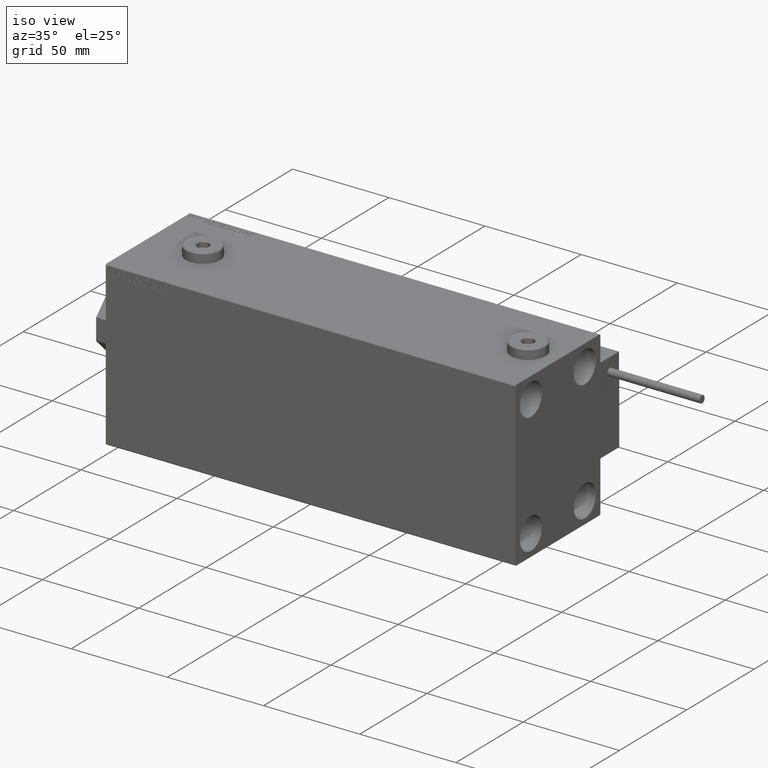
[diagram: clean part render]
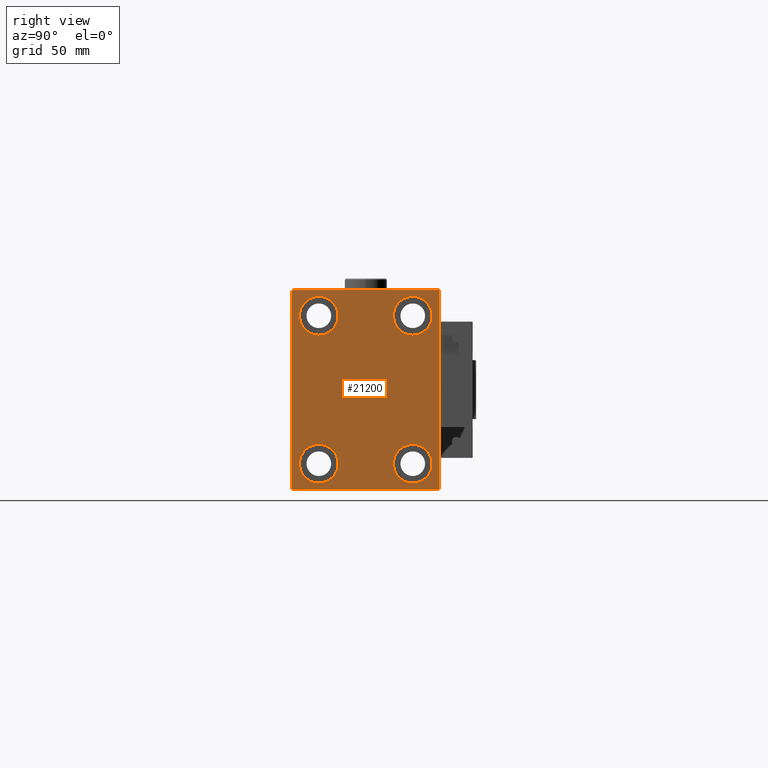
[diagram: tour spotlight — one face highlighted and labeled with its STEP entity id]
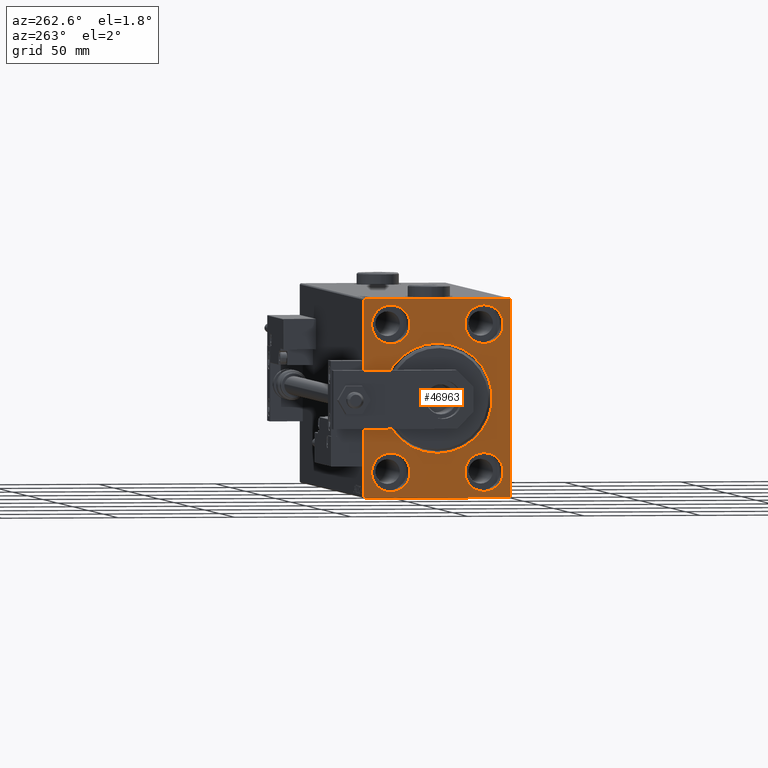
[diagram: tour spotlight — one face highlighted and labeled with its STEP entity id]
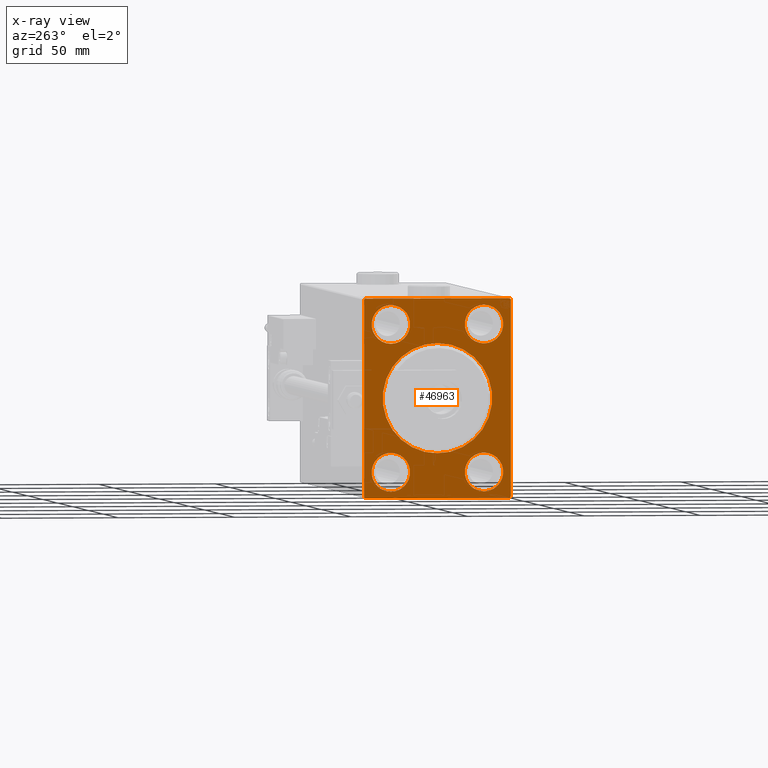
[diagram: x-ray of the same camera — body ghosted, this tour face saturated]
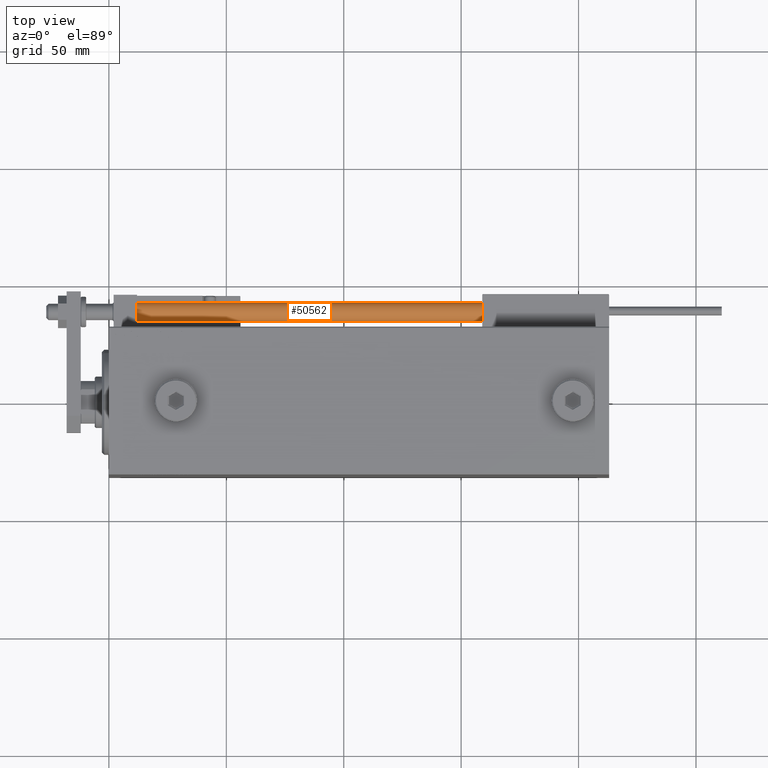
[diagram: tour spotlight — one face highlighted and labeled with its STEP entity id]
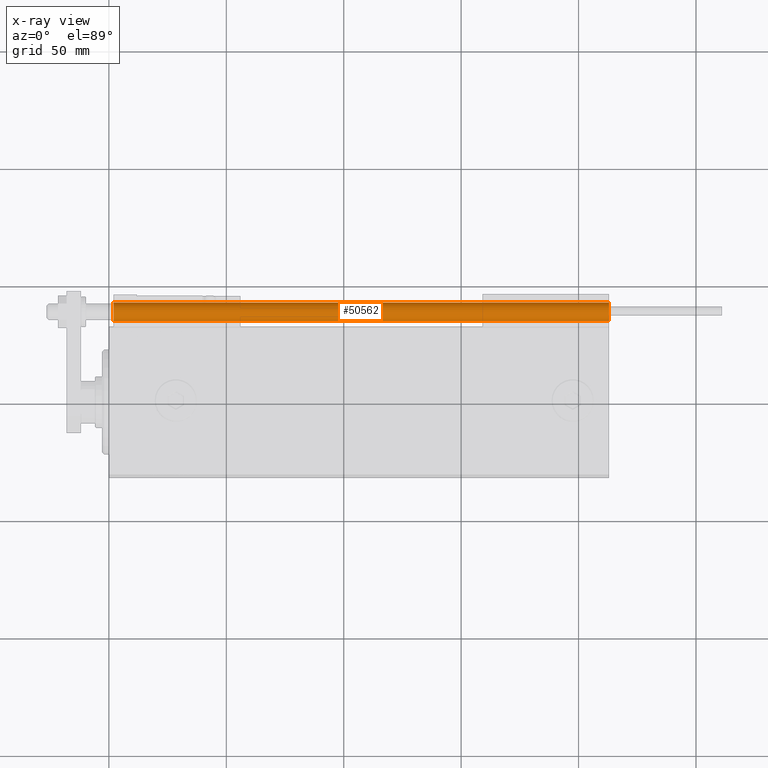
[diagram: x-ray of the same camera — body ghosted, this tour face saturated]
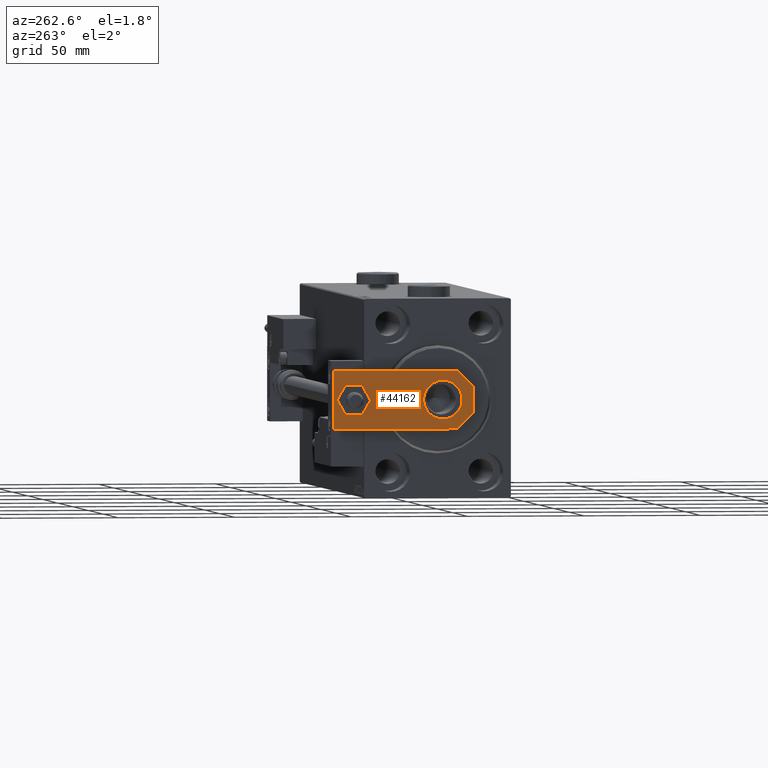
[diagram: tour spotlight — one face highlighted and labeled with its STEP entity id]
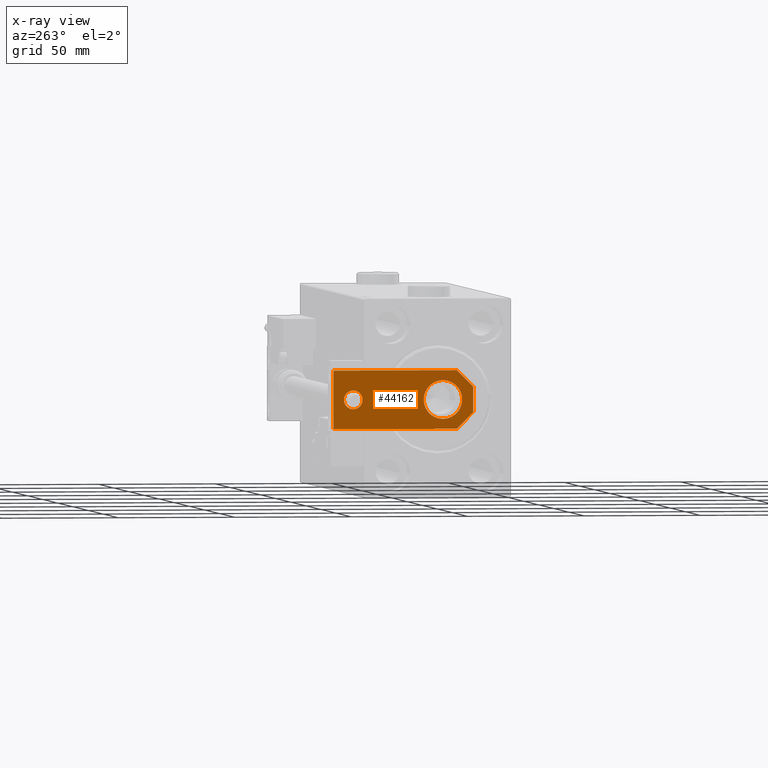
[diagram: x-ray of the same camera — body ghosted, this tour face saturated]
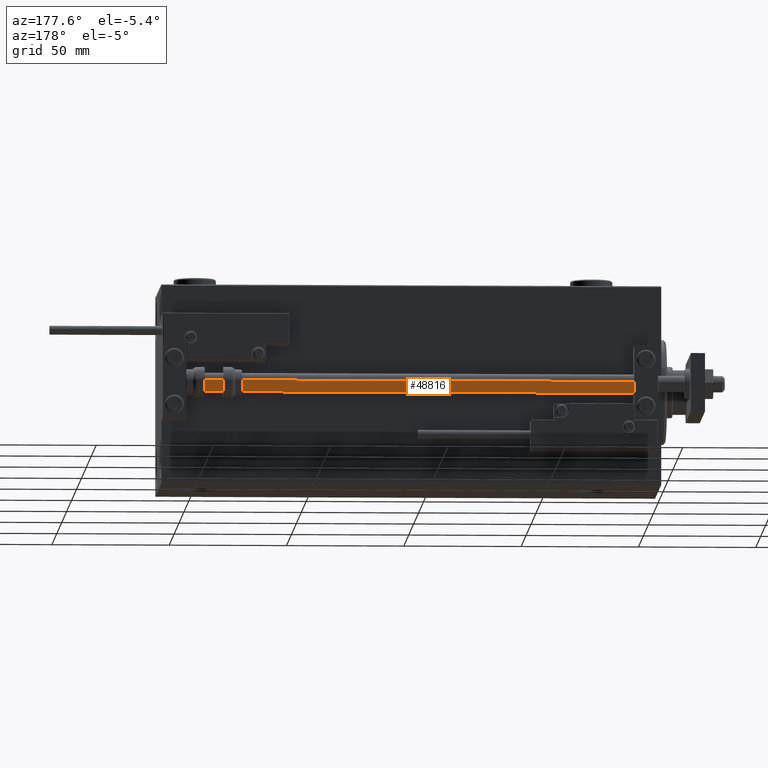
[diagram: tour spotlight — one face highlighted and labeled with its STEP entity id]
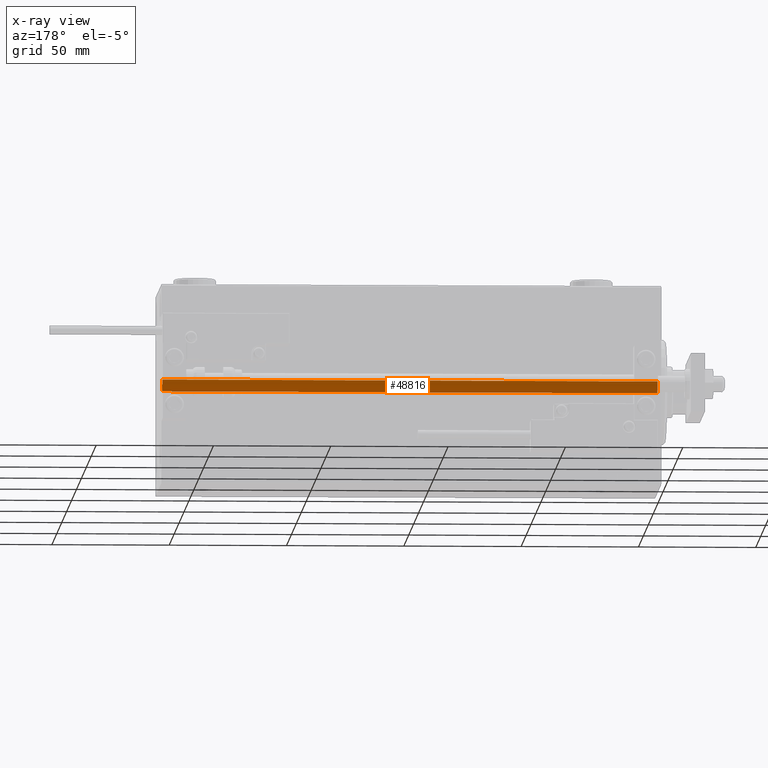
[diagram: x-ray of the same camera — body ghosted, this tour face saturated]
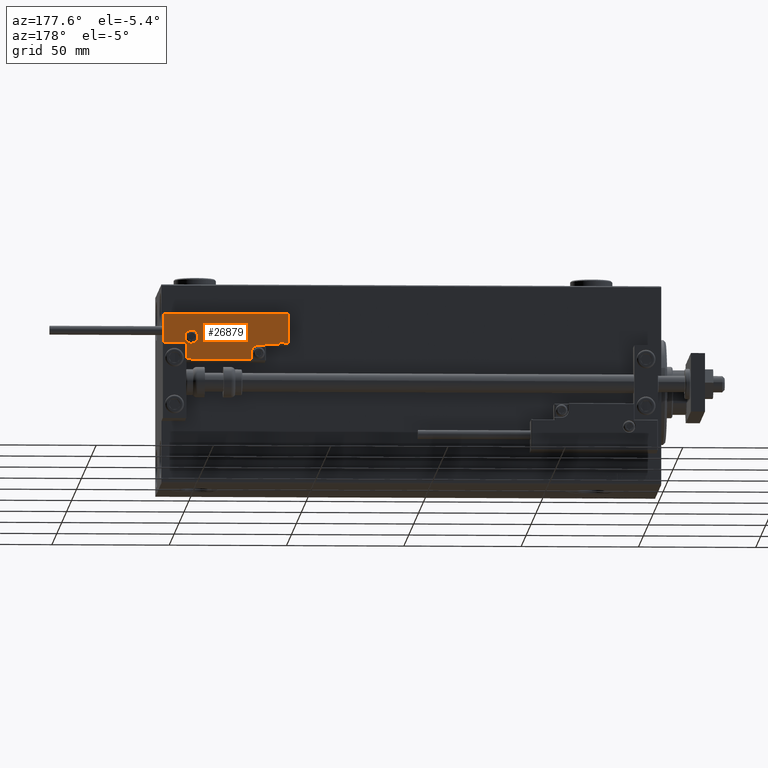
[diagram: tour spotlight — one face highlighted and labeled with its STEP entity id]
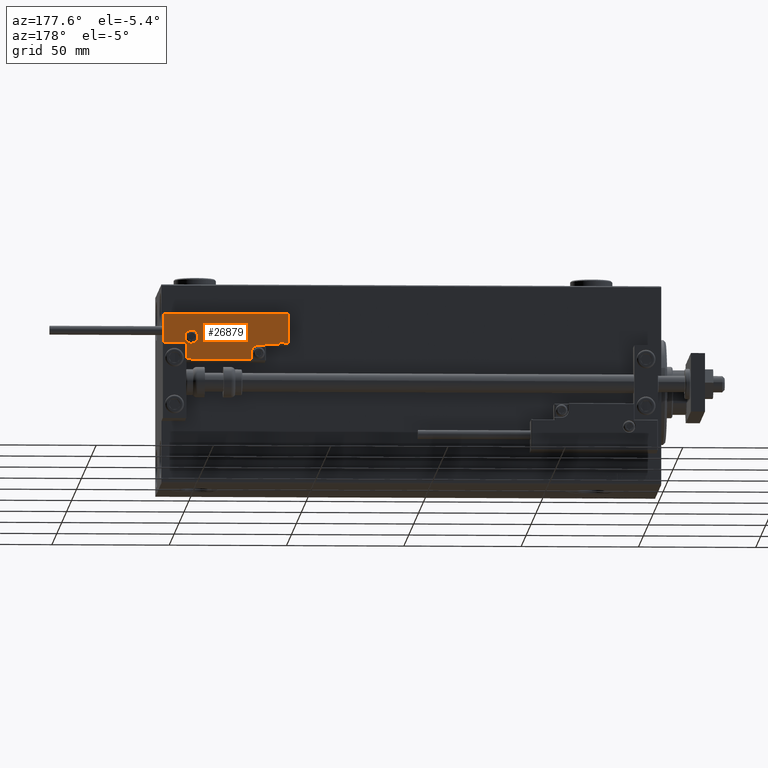
[diagram: tour spotlight — one face highlighted and labeled with its STEP entity id]
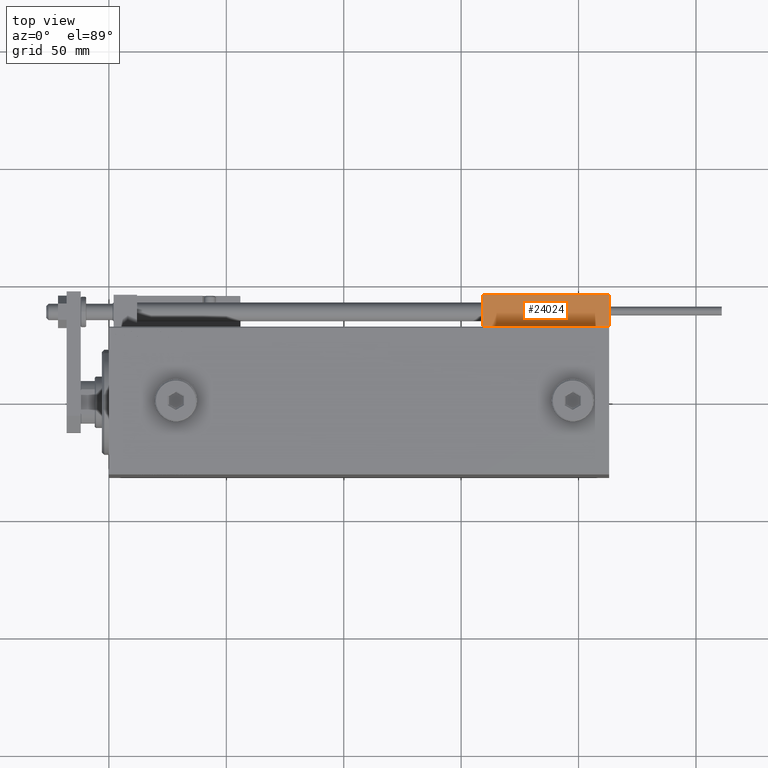
[diagram: tour spotlight — one face highlighted and labeled with its STEP entity id]
A machine part: a face-by-face anatomy tour. The part has 1336 B-rep faces; the first image is the clean iso view, then the 8 largest visible faces are spotlighted one at a time (largest first), each with its STEP entity span.

Face 1 — right view, entity #21200. In plain terms, the highlighted planar face has unit normal (1, 0, 0).
Definition (entity closure, byte-faithful):
#770 = EDGE_CURVE ( 'NONE', #31691, #12345, #3104, .T. ) ;
#1113 = DIRECTION ( 'NONE',  ( -1.000000000000000000, -0.000000000000000000, -0.000000000000000000 ) ) ;
#1137 = CARTESIAN_POINT ( 'NONE',  ( 213.0000000000000000, 19.99999999999999645, -31.49999999999999289 ) ) ;
#1385 = CARTESIAN_POINT ( 'NONE',  ( 213.0000000000000000, -19.99999999999999645, 23.25000000000000355 ) ) ;
#1439 = VERTEX_POINT ( 'NONE', #39429 ) ;
#1886 = VECTOR ( 'NONE', #8069, 1000.000000000000114 ) ;
#1909 = DIRECTION ( 'NONE',  ( -0.000000000000000000, -0.7071067811865474617, 0.7071067811865474617 ) ) ;
#2029 = ORIENTED_EDGE ( 'NONE', *, *, #49100, .T. ) ;
#2191 = CIRCLE ( 'NONE', #27139, 8.249999999999992895 ) ;
#2968 = AXIS2_PLACEMENT_3D ( 'NONE', #4440, #28670, #44817 ) ;
#3104 = LINE ( 'NONE', #41934, #21704 ) ;
#3385 = CARTESIAN_POINT ( 'NONE',  ( 213.0000000000000000, -19.99999999999999645, 31.50000000000000000 ) ) ;
#3682 = CIRCLE ( 'NONE', #26981, 8.249999999999992895 ) ;
#3981 = AXIS2_PLACEMENT_3D ( 'NONE', #48410, #32495, #48918 ) ;
#4244 = LINE ( 'NONE', #12336, #25779 ) ;
#4440 = CARTESIAN_POINT ( 'NONE',  ( 213.0000000000000000, 19.99999999999999645, -31.49999999999999289 ) ) ;
#4607 = CIRCLE ( 'NONE', #33704, 8.250000000000000000 ) ;
#4859 = ORIENTED_EDGE ( 'NONE', *, *, #26720, .T. ) ;
#4926 = LINE ( 'NONE', #20824, #1886 ) ;
#5028 = DIRECTION ( 'NONE',  ( 0.000000000000000000, 0.000000000000000000, 1.000000000000000000 ) ) ;
#5849 = EDGE_CURVE ( 'NONE', #39920, #8628, #22738, .T. ) ;
#6202 = VERTEX_POINT ( 'NONE', #51336 ) ;
#6503 = DIRECTION ( 'NONE',  ( 0.000000000000000000, 0.000000000000000000, 1.000000000000000000 ) ) ;
#7317 = DIRECTION ( 'NONE',  ( -0.000000000000000000, 0.7071067811865474617, -0.7071067811865474617 ) ) ;
#8069 = DIRECTION ( 'NONE',  ( 0.000000000000000000, -0.7071067811865474617, -0.7071067811865474617 ) ) ;
#8628 = VERTEX_POINT ( 'NONE', #51224 ) ;
#8717 = DIRECTION ( 'NONE',  ( 0.000000000000000000, 0.000000000000000000, 1.000000000000000000 ) ) ;
#9846 = VERTEX_POINT ( 'NONE', #28159 ) ;
#10618 = CARTESIAN_POINT ( 'NONE',  ( 213.0000000000000000, -31.00000000000000000, 42.49999999999999289 ) ) ;
#11580 = CARTESIAN_POINT ( 'NONE',  ( 213.0000000000000000, 36.75000000000001421, -36.75000000000001421 ) ) ;
#11672 = VERTEX_POINT ( 'NONE', #35327 ) ;
#11923 = EDGE_LOOP ( 'NONE', ( #41510, #20261 ) ) ;
#12087 = LINE ( 'NONE', #11580, #39803 ) ;
#12336 = CARTESIAN_POINT ( 'NONE',  ( 213.0000000000000000, -31.50000000000000000, 42.49999999999999289 ) ) ;
#12345 = VERTEX_POINT ( 'NONE', #37771 ) ;
#12977 = EDGE_CURVE ( 'NONE', #37536, #34709, #3682, .T. ) ;
#13161 = VECTOR ( 'NONE', #7317, 1000.000000000000114 ) ;
#13551 = VECTOR ( 'NONE', #1909, 1000.000000000000114 ) ;
#13674 = CARTESIAN_POINT ( 'NONE',  ( 213.0000000000000000, 31.00000000000000000, 42.50000000000000711 ) ) ;
#14230 = EDGE_LOOP ( 'NONE', ( #41371, #21351 ) ) ;
#14643 = VERTEX_POINT ( 'NONE', #13674 ) ;
#14706 = CARTESIAN_POINT ( 'NONE',  ( 213.0000000000000000, 31.50000000000001421, -42.50000000000000711 ) ) ;
#15003 = ORIENTED_EDGE ( 'NONE', *, *, #770, .T. ) ;
#15745 = DIRECTION ( 'NONE',  ( 0.000000000000000000, -1.000000000000000000, -2.202823461557850341E-16 ) ) ;
#16300 = VECTOR ( 'NONE', #15745, 1000.000000000000000 ) ;
#17883 = DIRECTION ( 'NONE',  ( 0.000000000000000000, 0.000000000000000000, 1.000000000000000000 ) ) ;
#18923 = VERTEX_POINT ( 'NONE', #43154 ) ;
#19628 = DIRECTION ( 'NONE',  ( 0.000000000000000000, 0.000000000000000000, -1.000000000000000000 ) ) ;
#19804 = AXIS2_PLACEMENT_3D ( 'NONE', #51418, #30580, #19628 ) ;
#19818 = ORIENTED_EDGE ( 'NONE', *, *, #35616, .T. ) ;
#20066 = DIRECTION ( 'NONE',  ( -1.000000000000000000, -0.000000000000000000, -0.000000000000000000 ) ) ;
#20205 = CIRCLE ( 'NONE', #44293, 8.249999999999992895 ) ;
#20261 = ORIENTED_EDGE ( 'NONE', *, *, #45968, .T. ) ;
#20824 = CARTESIAN_POINT ( 'NONE',  ( 213.0000000000000000, -36.75000000000000000, 36.75000000000000000 ) ) ;
#21200 = ADVANCED_FACE ( 'NONE', ( #23276, #46730, #35508, #50648, #47248 ), #43593, .T. ) ;
#21351 = ORIENTED_EDGE ( 'NONE', *, *, #12977, .T. ) ;
#21704 = VECTOR ( 'NONE', #37754, 1000.000000000000000 ) ;
#22376 = ORIENTED_EDGE ( 'NONE', *, *, #35947, .T. ) ;
#22474 = EDGE_LOOP ( 'NONE', ( #35215, #22376 ) ) ;
#22701 = CARTESIAN_POINT ( 'NONE',  ( 213.0000000000000000, 31.50000000000001421, -42.00000000000000711 ) ) ;
#22738 = LINE ( 'NONE', #14706, #33474 ) ;
#22876 = EDGE_CURVE ( 'NONE', #12345, #39920, #12087, .T. ) ;
#23276 = FACE_BOUND ( 'NONE', #26692, .T. ) ;
#23379 = VERTEX_POINT ( 'NONE', #28361 ) ;
#24997 = VERTEX_POINT ( 'NONE', #1385 ) ;
#25779 = VECTOR ( 'NONE', #47756, 1000.000000000000000 ) ;
#25966 = AXIS2_PLACEMENT_3D ( 'NONE', #1137, #37084, #8717 ) ;
#26456 = CIRCLE ( 'NONE', #3981, 8.249999999999992895 ) ;
#26692 = EDGE_LOOP ( 'NONE', ( #44616, #36876 ) ) ;
#26720 = EDGE_CURVE ( 'NONE', #11672, #23379, #4244, .T. ) ;
#26901 = LINE ( 'NONE', #46459, #13551 ) ;
#26981 = AXIS2_PLACEMENT_3D ( 'NONE', #45932, #31045, #34700 ) ;
#27139 = AXIS2_PLACEMENT_3D ( 'NONE', #44570, #45330, #6503 ) ;
#27456 = LINE ( 'NONE', #35774, #16300 ) ;
#28159 = CARTESIAN_POINT ( 'NONE',  ( 213.0000000000000000, 19.99999999999999645, -23.24999999999999289 ) ) ;
#28361 = CARTESIAN_POINT ( 'NONE',  ( 213.0000000000000000, -31.50000000000000000, -42.00000000000000711 ) ) ;
#28414 = AXIS2_PLACEMENT_3D ( 'NONE', #46253, #33998, #17883 ) ;
#28482 = DIRECTION ( 'NONE',  ( -0.000000000000000000, 0.7071067811865474617, 0.7071067811865474617 ) ) ;
#28670 = DIRECTION ( 'NONE',  ( -1.000000000000000000, -0.000000000000000000, -0.000000000000000000 ) ) ;
#29801 = DIRECTION ( 'NONE',  ( 0.000000000000000000, -1.632680918566406300E-16, 1.000000000000000000 ) ) ;
#30580 = DIRECTION ( 'NONE',  ( 1.000000000000000000, 0.000000000000000000, 0.000000000000000000 ) ) ;
#31037 = ORIENTED_EDGE ( 'NONE', *, *, #22876, .T. ) ;
#31045 = DIRECTION ( 'NONE',  ( -1.000000000000000000, -0.000000000000000000, -0.000000000000000000 ) ) ;
#31259 = CIRCLE ( 'NONE', #2968, 8.250000000000000000 ) ;
#31691 = VERTEX_POINT ( 'NONE', #50952 ) ;
#31772 = EDGE_CURVE ( 'NONE', #9846, #6202, #44264, .T. ) ;
#32495 = DIRECTION ( 'NONE',  ( -1.000000000000000000, -0.000000000000000000, -0.000000000000000000 ) ) ;
#33346 = EDGE_CURVE ( 'NONE', #1439, #49920, #47571, .T. ) ;
#33474 = VECTOR ( 'NONE', #29801, 1000.000000000000000 ) ;
#33704 = AXIS2_PLACEMENT_3D ( 'NONE', #48290, #1113, #5028 ) ;
#33998 = DIRECTION ( 'NONE',  ( -1.000000000000000000, -0.000000000000000000, -0.000000000000000000 ) ) ;
#34652 = ORIENTED_EDGE ( 'NONE', *, *, #37005, .T. ) ;
#34664 = LINE ( 'NONE', #38321, #13161 ) ;
#34700 = DIRECTION ( 'NONE',  ( 0.000000000000000000, 0.000000000000000000, 1.000000000000000000 ) ) ;
#34709 = VERTEX_POINT ( 'NONE', #47727 ) ;
#35055 = CARTESIAN_POINT ( 'NONE',  ( 213.0000000000000000, -20.00000000000000355, -23.24999999999999289 ) ) ;
#35215 = ORIENTED_EDGE ( 'NONE', *, *, #49556, .T. ) ;
#35327 = CARTESIAN_POINT ( 'NONE',  ( 213.0000000000000000, -31.50000000000000000, 41.99999999999999289 ) ) ;
#35508 = FACE_BOUND ( 'NONE', #14230, .T. ) ;
#35616 = EDGE_CURVE ( 'NONE', #8628, #14643, #26901, .T. ) ;
#35774 = CARTESIAN_POINT ( 'NONE',  ( 213.0000000000000000, 31.50000000000000000, 42.50000000000000711 ) ) ;
#35801 = ORIENTED_EDGE ( 'NONE', *, *, #5849, .T. ) ;
#35947 = EDGE_CURVE ( 'NONE', #18923, #24997, #20205, .T. ) ;
#36331 = CARTESIAN_POINT ( 'NONE',  ( 213.0000000000000000, 20.00000000000000355, 39.74999999999999289 ) ) ;
#36876 = ORIENTED_EDGE ( 'NONE', *, *, #31772, .T. ) ;
#37005 = EDGE_CURVE ( 'NONE', #50613, #11672, #4926, .T. ) ;
#37084 = DIRECTION ( 'NONE',  ( -1.000000000000000000, -0.000000000000000000, -0.000000000000000000 ) ) ;
#37536 = VERTEX_POINT ( 'NONE', #36331 ) ;
#37754 = DIRECTION ( 'NONE',  ( 0.000000000000000000, 1.000000000000000000, 0.000000000000000000 ) ) ;
#37771 = CARTESIAN_POINT ( 'NONE',  ( 213.0000000000000000, 31.00000000000001421, -42.50000000000000711 ) ) ;
#38321 = CARTESIAN_POINT ( 'NONE',  ( 213.0000000000000000, -36.75000000000000711, -36.75000000000000711 ) ) ;
#39429 = CARTESIAN_POINT ( 'NONE',  ( 213.0000000000000000, -20.00000000000000355, -39.74999999999999289 ) ) ;
#39803 = VECTOR ( 'NONE', #28482, 1000.000000000000114 ) ;
#39920 = VERTEX_POINT ( 'NONE', #22701 ) ;
#41371 = ORIENTED_EDGE ( 'NONE', *, *, #44233, .T. ) ;
#41510 = ORIENTED_EDGE ( 'NONE', *, *, #33346, .T. ) ;
#41934 = CARTESIAN_POINT ( 'NONE',  ( 213.0000000000000000, -31.50000000000000000, -42.50000000000000711 ) ) ;
#42990 = DIRECTION ( 'NONE',  ( 0.000000000000000000, 0.000000000000000000, 1.000000000000000000 ) ) ;
#43107 = EDGE_CURVE ( 'NONE', #6202, #9846, #31259, .T. ) ;
#43154 = CARTESIAN_POINT ( 'NONE',  ( 213.0000000000000000, -19.99999999999999645, 39.74999999999999289 ) ) ;
#43593 = PLANE ( 'NONE',  #19804 ) ;
#44233 = EDGE_CURVE ( 'NONE', #34709, #37536, #2191, .T. ) ;
#44264 = CIRCLE ( 'NONE', #25966, 8.250000000000000000 ) ;
#44293 = AXIS2_PLACEMENT_3D ( 'NONE', #3385, #20066, #42990 ) ;
#44570 = CARTESIAN_POINT ( 'NONE',  ( 213.0000000000000000, 20.00000000000000355, 31.50000000000000000 ) ) ;
#44616 = ORIENTED_EDGE ( 'NONE', *, *, #43107, .T. ) ;
#44817 = DIRECTION ( 'NONE',  ( 0.000000000000000000, 0.000000000000000000, 1.000000000000000000 ) ) ;
#45330 = DIRECTION ( 'NONE',  ( -1.000000000000000000, -0.000000000000000000, -0.000000000000000000 ) ) ;
#45875 = EDGE_CURVE ( 'NONE', #14643, #50613, #27456, .T. ) ;
#45932 = CARTESIAN_POINT ( 'NONE',  ( 213.0000000000000000, 20.00000000000000355, 31.50000000000000000 ) ) ;
#45956 = EDGE_LOOP ( 'NONE', ( #51356, #34652, #4859, #2029, #15003, #31037, #35801, #19818 ) ) ;
#45968 = EDGE_CURVE ( 'NONE', #49920, #1439, #4607, .T. ) ;
#46253 = CARTESIAN_POINT ( 'NONE',  ( 213.0000000000000000, -20.00000000000000355, -31.49999999999999289 ) ) ;
#46459 = CARTESIAN_POINT ( 'NONE',  ( 213.0000000000000000, 36.75000000000000711, 36.75000000000000711 ) ) ;
#46730 = FACE_BOUND ( 'NONE', #22474, .T. ) ;
#47248 = FACE_OUTER_BOUND ( 'NONE', #45956, .T. ) ;
#47571 = CIRCLE ( 'NONE', #28414, 8.250000000000000000 ) ;
#47727 = CARTESIAN_POINT ( 'NONE',  ( 213.0000000000000000, 20.00000000000000355, 23.25000000000000355 ) ) ;
#47756 = DIRECTION ( 'NONE',  ( 0.000000000000000000, 0.000000000000000000, -1.000000000000000000 ) ) ;
#48290 = CARTESIAN_POINT ( 'NONE',  ( 213.0000000000000000, -20.00000000000000355, -31.49999999999999289 ) ) ;
#48410 = CARTESIAN_POINT ( 'NONE',  ( 213.0000000000000000, -19.99999999999999645, 31.50000000000000000 ) ) ;
#48918 = DIRECTION ( 'NONE',  ( 0.000000000000000000, 0.000000000000000000, 1.000000000000000000 ) ) ;
#49100 = EDGE_CURVE ( 'NONE', #23379, #31691, #34664, .T. ) ;
#49556 = EDGE_CURVE ( 'NONE', #24997, #18923, #26456, .T. ) ;
#49920 = VERTEX_POINT ( 'NONE', #35055 ) ;
#50613 = VERTEX_POINT ( 'NONE', #10618 ) ;
#50648 = FACE_BOUND ( 'NONE', #11923, .T. ) ;
#50952 = CARTESIAN_POINT ( 'NONE',  ( 213.0000000000000000, -31.00000000000000000, -42.50000000000000711 ) ) ;
#51224 = CARTESIAN_POINT ( 'NONE',  ( 213.0000000000000000, 31.50000000000000000, 42.00000000000000711 ) ) ;
#51336 = CARTESIAN_POINT ( 'NONE',  ( 213.0000000000000000, 19.99999999999999645, -39.74999999999999289 ) ) ;
#51356 = ORIENTED_EDGE ( 'NONE', *, *, #45875, .T. ) ;
#51418 = CARTESIAN_POINT ( 'NONE',  ( 213.0000000000000000, 0.000000000000000000, 0.000000000000000000 ) ) ;

Face 2 — auxiliary view, entity #46963. An x-ray twin of the same camera follows (body ghosted, this face saturated) — the face is partly hidden behind the body. In plain terms, the highlighted planar face has unit normal (1, 0, 0).
Definition (entity closure, byte-faithful):
#901 = VERTEX_POINT ( 'NONE', #16127 ) ;
#1063 = CARTESIAN_POINT ( 'NONE',  ( 0.000000000000000000, -31.50000000000000000, 41.99999999999999289 ) ) ;
#1459 = VERTEX_POINT ( 'NONE', #11583 ) ;
#1747 = DIRECTION ( 'NONE',  ( 0.000000000000000000, 0.000000000000000000, 1.000000000000000000 ) ) ;
#1768 = DIRECTION ( 'NONE',  ( 0.000000000000000000, -0.7071067811865474617, -0.7071067811865474617 ) ) ;
#1949 = CIRCLE ( 'NONE', #36908, 8.249999999999992895 ) ;
#2044 = VERTEX_POINT ( 'NONE', #33214 ) ;
#2242 = EDGE_CURVE ( 'NONE', #40157, #19735, #34220, .T. ) ;
#2728 = DIRECTION ( 'NONE',  ( 0.000000000000000000, 0.000000000000000000, -1.000000000000000000 ) ) ;
#2841 = AXIS2_PLACEMENT_3D ( 'NONE', #50094, #14423, #46181 ) ;
#2917 = DIRECTION ( 'NONE',  ( 0.000000000000000000, 0.000000000000000000, 1.000000000000000000 ) ) ;
#3029 = EDGE_LOOP ( 'NONE', ( #46646, #26452 ) ) ;
#3076 = CARTESIAN_POINT ( 'NONE',  ( 0.000000000000000000, 20.00000000000000355, 39.74999999999999289 ) ) ;
#3082 = DIRECTION ( 'NONE',  ( 0.000000000000000000, 0.000000000000000000, 1.000000000000000000 ) ) ;
#3588 = VERTEX_POINT ( 'NONE', #20869 ) ;
#3963 = CARTESIAN_POINT ( 'NONE',  ( 0.000000000000000000, 20.00000000000000355, 31.50000000000000000 ) ) ;
#4461 = LINE ( 'NONE', #1063, #44221 ) ;
#5447 = CIRCLE ( 'NONE', #2841, 8.249999999999992895 ) ;
#6646 = EDGE_LOOP ( 'NONE', ( #14397, #17013 ) ) ;
#7705 = DIRECTION ( 'NONE',  ( 0.000000000000000000, 0.000000000000000000, -1.000000000000000000 ) ) ;
#7838 = CARTESIAN_POINT ( 'NONE',  ( 0.000000000000000000, -31.00000000000000000, 42.49999999999999289 ) ) ;
#8242 = EDGE_CURVE ( 'NONE', #1459, #43656, #1949, .T. ) ;
#8271 = EDGE_LOOP ( 'NONE', ( #49228, #14912, #13829, #46405, #27257, #51272, #46830, #12637 ) ) ;
#8447 = VECTOR ( 'NONE', #29567, 1000.000000000000114 ) ;
#8577 = EDGE_CURVE ( 'NONE', #17945, #10219, #46796, .T. ) ;
#9240 = VECTOR ( 'NONE', #1768, 1000.000000000000114 ) ;
#9621 = AXIS2_PLACEMENT_3D ( 'NONE', #26883, #19081, #2917 ) ;
#10219 = VERTEX_POINT ( 'NONE', #20038 ) ;
#10642 = CARTESIAN_POINT ( 'NONE',  ( 0.000000000000000000, 19.99999999999999645, -23.24999999999999289 ) ) ;
#10987 = DIRECTION ( 'NONE',  ( 0.000000000000000000, -1.632680918566406300E-16, 1.000000000000000000 ) ) ;
#11341 = CARTESIAN_POINT ( 'NONE',  ( 0.000000000000000000, 20.00000000000000355, 31.50000000000000000 ) ) ;
#11449 = CARTESIAN_POINT ( 'NONE',  ( 0.000000000000000000, 31.00000000000000000, 42.50000000000000711 ) ) ;
#11543 = ORIENTED_EDGE ( 'NONE', *, *, #33240, .T. ) ;
#11564 = EDGE_CURVE ( 'NONE', #37086, #901, #26241, .T. ) ;
#11583 = CARTESIAN_POINT ( 'NONE',  ( 0.000000000000000000, -19.99999999999999645, 39.74999999999999289 ) ) ;
#11815 = CARTESIAN_POINT ( 'NONE',  ( 0.000000000000000000, -31.50000000000000000, 41.99999999999999289 ) ) ;
#11918 = CARTESIAN_POINT ( 'NONE',  ( 0.000000000000000000, 31.50000000000000000, 42.50000000000000711 ) ) ;
#12085 = EDGE_CURVE ( 'NONE', #901, #37086, #21141, .T. ) ;
#12151 = EDGE_CURVE ( 'NONE', #43656, #1459, #5447, .T. ) ;
#12637 = ORIENTED_EDGE ( 'NONE', *, *, #21936, .T. ) ;
#12909 = CARTESIAN_POINT ( 'NONE',  ( 0.000000000000000000, -20.00000000000000355, -23.24999999999999289 ) ) ;
#13829 = ORIENTED_EDGE ( 'NONE', *, *, #42422, .F. ) ;
#14217 = CARTESIAN_POINT ( 'NONE',  ( 0.000000000000000000, -31.00000000000000000, -42.50000000000000711 ) ) ;
#14233 = FACE_BOUND ( 'NONE', #6646, .T. ) ;
#14318 = CARTESIAN_POINT ( 'NONE',  ( 0.000000000000000000, -20.00000000000000355, -39.74999999999999289 ) ) ;
#14379 = CIRCLE ( 'NONE', #34308, 8.249999999999992895 ) ;
#14397 = ORIENTED_EDGE ( 'NONE', *, *, #8242, .F. ) ;
#14423 = DIRECTION ( 'NONE',  ( -1.000000000000000000, 0.000000000000000000, 0.000000000000000000 ) ) ;
#14658 = CARTESIAN_POINT ( 'NONE',  ( 0.000000000000000000, 31.50000000000001421, -42.50000000000000711 ) ) ;
#14834 = DIRECTION ( 'NONE',  ( 0.000000000000000000, 0.000000000000000000, -1.000000000000000000 ) ) ;
#14912 = ORIENTED_EDGE ( 'NONE', *, *, #33765, .T. ) ;
#15118 = AXIS2_PLACEMENT_3D ( 'NONE', #26786, #19486, #14834 ) ;
#15153 = VECTOR ( 'NONE', #18585, 1000.000000000000114 ) ;
#15200 = DIRECTION ( 'NONE',  ( -1.000000000000000000, 0.000000000000000000, 0.000000000000000000 ) ) ;
#15477 = AXIS2_PLACEMENT_3D ( 'NONE', #28371, #24969, #28891 ) ;
#16127 = CARTESIAN_POINT ( 'NONE',  ( 0.000000000000000000, 19.99999999999999645, -39.74999999999999289 ) ) ;
#16509 = ORIENTED_EDGE ( 'NONE', *, *, #44531, .F. ) ;
#17013 = ORIENTED_EDGE ( 'NONE', *, *, #12151, .F. ) ;
#17565 = CARTESIAN_POINT ( 'NONE',  ( 0.000000000000000000, 2.877919977996285448E-15, -23.50000000000004619 ) ) ;
#17669 = DIRECTION ( 'NONE',  ( -1.000000000000000000, 0.000000000000000000, 0.000000000000000000 ) ) ;
#17938 = DIRECTION ( 'NONE',  ( 0.000000000000000000, 0.000000000000000000, 1.000000000000000000 ) ) ;
#17945 = VERTEX_POINT ( 'NONE', #11815 ) ;
#18106 = EDGE_CURVE ( 'NONE', #49878, #42031, #46664, .T. ) ;
#18585 = DIRECTION ( 'NONE',  ( -0.000000000000000000, 0.7071067811865474617, -0.7071067811865474617 ) ) ;
#18902 = FACE_BOUND ( 'NONE', #37914, .T. ) ;
#19081 = DIRECTION ( 'NONE',  ( -1.000000000000000000, 0.000000000000000000, 0.000000000000000000 ) ) ;
#19273 = AXIS2_PLACEMENT_3D ( 'NONE', #29591, #21514, #37392 ) ;
#19350 = DIRECTION ( 'NONE',  ( 0.000000000000000000, 0.000000000000000000, 1.000000000000000000 ) ) ;
#19486 = DIRECTION ( 'NONE',  ( 1.000000000000000000, 0.000000000000000000, 0.000000000000000000 ) ) ;
#19735 = VERTEX_POINT ( 'NONE', #3076 ) ;
#20038 = CARTESIAN_POINT ( 'NONE',  ( 0.000000000000000000, -31.50000000000000000, -42.00000000000000711 ) ) ;
#20113 = VERTEX_POINT ( 'NONE', #12909 ) ;
#20239 = CARTESIAN_POINT ( 'NONE',  ( 0.000000000000000000, -31.50000000000000000, -42.50000000000000711 ) ) ;
#20869 = CARTESIAN_POINT ( 'NONE',  ( 0.000000000000000000, 0.000000000000000000, 23.50000000000004619 ) ) ;
#21141 = CIRCLE ( 'NONE', #9621, 8.250000000000000000 ) ;
#21514 = DIRECTION ( 'NONE',  ( 1.000000000000000000, 0.000000000000000000, 0.000000000000000000 ) ) ;
#21566 = VERTEX_POINT ( 'NONE', #7838 ) ;
#21936 = EDGE_CURVE ( 'NONE', #40918, #10219, #46490, .T. ) ;
#23047 = FACE_BOUND ( 'NONE', #3029, .T. ) ;
#23140 = CARTESIAN_POINT ( 'NONE',  ( 0.000000000000000000, -19.99999999999999645, 31.50000000000000000 ) ) ;
#23552 = DIRECTION ( 'NONE',  ( 0.000000000000000000, 0.000000000000000000, 1.000000000000000000 ) ) ;
#24114 = CARTESIAN_POINT ( 'NONE',  ( 0.000000000000000000, 31.50000000000001421, -42.00000000000000711 ) ) ;
#24146 = DIRECTION ( 'NONE',  ( 0.000000000000000000, -1.000000000000000000, -2.202823461557850341E-16 ) ) ;
#24395 = LINE ( 'NONE', #20239, #32043 ) ;
#24675 = VECTOR ( 'NONE', #10987, 1000.000000000000000 ) ;
#24969 = DIRECTION ( 'NONE',  ( -1.000000000000000000, 0.000000000000000000, 0.000000000000000000 ) ) ;
#25178 = EDGE_LOOP ( 'NONE', ( #11543, #36774 ) ) ;
#26241 = CIRCLE ( 'NONE', #42052, 8.250000000000000000 ) ;
#26285 = CIRCLE ( 'NONE', #15477, 8.250000000000000000 ) ;
#26452 = ORIENTED_EDGE ( 'NONE', *, *, #2242, .F. ) ;
#26695 = FACE_BOUND ( 'NONE', #25178, .T. ) ;
#26786 = CARTESIAN_POINT ( 'NONE',  ( 0.000000000000000000, 0.000000000000000000, 0.000000000000000000 ) ) ;
#26883 = CARTESIAN_POINT ( 'NONE',  ( 0.000000000000000000, 19.99999999999999645, -31.49999999999999289 ) ) ;
#26986 = VECTOR ( 'NONE', #7705, 1000.000000000000000 ) ;
#27257 = ORIENTED_EDGE ( 'NONE', *, *, #18106, .F. ) ;
#27869 = VERTEX_POINT ( 'NONE', #14318 ) ;
#28371 = CARTESIAN_POINT ( 'NONE',  ( 0.000000000000000000, -20.00000000000000355, -31.49999999999999289 ) ) ;
#28560 = EDGE_CURVE ( 'NONE', #49878, #2044, #29658, .T. ) ;
#28726 = EDGE_LOOP ( 'NONE', ( #16509, #39593 ) ) ;
#28891 = DIRECTION ( 'NONE',  ( 0.000000000000000000, 0.000000000000000000, 1.000000000000000000 ) ) ;
#29567 = DIRECTION ( 'NONE',  ( -0.000000000000000000, -0.7071067811865474617, 0.7071067811865474617 ) ) ;
#29591 = CARTESIAN_POINT ( 'NONE',  ( 0.000000000000000000, 0.000000000000000000, 0.000000000000000000 ) ) ;
#29658 = LINE ( 'NONE', #45551, #9240 ) ;
#29785 = LINE ( 'NONE', #38362, #15153 ) ;
#29804 = ORIENTED_EDGE ( 'NONE', *, *, #11564, .F. ) ;
#30478 = EDGE_CURVE ( 'NONE', #31884, #3588, #46753, .T. ) ;
#30896 = CARTESIAN_POINT ( 'NONE',  ( 0.000000000000000000, -31.50000000000000000, 42.49999999999999289 ) ) ;
#31113 = CARTESIAN_POINT ( 'NONE',  ( 0.000000000000000000, 0.000000000000000000, 0.000000000000000000 ) ) ;
#31884 = VERTEX_POINT ( 'NONE', #17565 ) ;
#32043 = VECTOR ( 'NONE', #43685, 1000.000000000000000 ) ;
#32932 = AXIS2_PLACEMENT_3D ( 'NONE', #37436, #17669, #1747 ) ;
#33214 = CARTESIAN_POINT ( 'NONE',  ( 0.000000000000000000, 31.00000000000001421, -42.50000000000000711 ) ) ;
#33240 = EDGE_CURVE ( 'NONE', #3588, #31884, #49198, .T. ) ;
#33765 = EDGE_CURVE ( 'NONE', #17945, #21566, #4461, .T. ) ;
#34220 = CIRCLE ( 'NONE', #48388, 8.249999999999992895 ) ;
#34308 = AXIS2_PLACEMENT_3D ( 'NONE', #3963, #15200, #19350 ) ;
#34625 = EDGE_CURVE ( 'NONE', #50381, #42031, #29785, .T. ) ;
#34761 = FACE_OUTER_BOUND ( 'NONE', #8271, .T. ) ;
#35633 = DIRECTION ( 'NONE',  ( -1.000000000000000000, 0.000000000000000000, 0.000000000000000000 ) ) ;
#35691 = EDGE_CURVE ( 'NONE', #19735, #40157, #14379, .T. ) ;
#36774 = ORIENTED_EDGE ( 'NONE', *, *, #30478, .T. ) ;
#36908 = AXIS2_PLACEMENT_3D ( 'NONE', #23140, #35633, #3082 ) ;
#37086 = VERTEX_POINT ( 'NONE', #10642 ) ;
#37392 = DIRECTION ( 'NONE',  ( 0.000000000000000000, 0.000000000000000000, -1.000000000000000000 ) ) ;
#37436 = CARTESIAN_POINT ( 'NONE',  ( 0.000000000000000000, -20.00000000000000355, -31.49999999999999289 ) ) ;
#37914 = EDGE_LOOP ( 'NONE', ( #29804, #51119 ) ) ;
#38279 = CARTESIAN_POINT ( 'NONE',  ( 0.000000000000000000, 20.00000000000000355, 23.25000000000000355 ) ) ;
#38362 = CARTESIAN_POINT ( 'NONE',  ( 0.000000000000000000, 31.00000000000000000, 42.50000000000000711 ) ) ;
#38926 = DIRECTION ( 'NONE',  ( 1.000000000000000000, 0.000000000000000000, 0.000000000000000000 ) ) ;
#39593 = ORIENTED_EDGE ( 'NONE', *, *, #47264, .F. ) ;
#39781 = LINE ( 'NONE', #11918, #50353 ) ;
#40157 = VERTEX_POINT ( 'NONE', #38279 ) ;
#40918 = VERTEX_POINT ( 'NONE', #45210 ) ;
#42031 = VERTEX_POINT ( 'NONE', #49320 ) ;
#42052 = AXIS2_PLACEMENT_3D ( 'NONE', #48937, #49178, #17938 ) ;
#42422 = EDGE_CURVE ( 'NONE', #50381, #21566, #39781, .T. ) ;
#43656 = VERTEX_POINT ( 'NONE', #48032 ) ;
#43685 = DIRECTION ( 'NONE',  ( 0.000000000000000000, 1.000000000000000000, 0.000000000000000000 ) ) ;
#44221 = VECTOR ( 'NONE', #44582, 1000.000000000000114 ) ;
#44531 = EDGE_CURVE ( 'NONE', #20113, #27869, #48759, .T. ) ;
#44582 = DIRECTION ( 'NONE',  ( -0.000000000000000000, 0.7071067811865474617, 0.7071067811865474617 ) ) ;
#45210 = CARTESIAN_POINT ( 'NONE',  ( 0.000000000000000000, -31.00000000000000000, -42.50000000000000711 ) ) ;
#45551 = CARTESIAN_POINT ( 'NONE',  ( 0.000000000000000000, 31.50000000000001421, -42.00000000000000711 ) ) ;
#46181 = DIRECTION ( 'NONE',  ( 0.000000000000000000, 0.000000000000000000, 1.000000000000000000 ) ) ;
#46405 = ORIENTED_EDGE ( 'NONE', *, *, #34625, .T. ) ;
#46490 = LINE ( 'NONE', #14217, #8447 ) ;
#46646 = ORIENTED_EDGE ( 'NONE', *, *, #35691, .F. ) ;
#46664 = LINE ( 'NONE', #14658, #24675 ) ;
#46753 = CIRCLE ( 'NONE', #19273, 23.50000000000004619 ) ;
#46796 = LINE ( 'NONE', #30896, #26986 ) ;
#46830 = ORIENTED_EDGE ( 'NONE', *, *, #51567, .F. ) ;
#46963 = ADVANCED_FACE ( 'NONE', ( #26695, #18902, #14233, #23047, #49906, #34761 ), #50674, .F. ) ;
#47264 = EDGE_CURVE ( 'NONE', #27869, #20113, #26285, .T. ) ;
#48032 = CARTESIAN_POINT ( 'NONE',  ( 0.000000000000000000, -19.99999999999999645, 23.25000000000000355 ) ) ;
#48388 = AXIS2_PLACEMENT_3D ( 'NONE', #11341, #50672, #23552 ) ;
#48759 = CIRCLE ( 'NONE', #32932, 8.250000000000000000 ) ;
#48937 = CARTESIAN_POINT ( 'NONE',  ( 0.000000000000000000, 19.99999999999999645, -31.49999999999999289 ) ) ;
#49178 = DIRECTION ( 'NONE',  ( -1.000000000000000000, 0.000000000000000000, 0.000000000000000000 ) ) ;
#49198 = CIRCLE ( 'NONE', #15118, 23.50000000000004619 ) ;
#49228 = ORIENTED_EDGE ( 'NONE', *, *, #8577, .F. ) ;
#49320 = CARTESIAN_POINT ( 'NONE',  ( 0.000000000000000000, 31.50000000000000000, 42.00000000000000711 ) ) ;
#49566 = AXIS2_PLACEMENT_3D ( 'NONE', #31113, #38926, #2728 ) ;
#49878 = VERTEX_POINT ( 'NONE', #24114 ) ;
#49906 = FACE_BOUND ( 'NONE', #28726, .T. ) ;
#50094 = CARTESIAN_POINT ( 'NONE',  ( 0.000000000000000000, -19.99999999999999645, 31.50000000000000000 ) ) ;
#50353 = VECTOR ( 'NONE', #24146, 1000.000000000000000 ) ;
#50381 = VERTEX_POINT ( 'NONE', #11449 ) ;
#50672 = DIRECTION ( 'NONE',  ( -1.000000000000000000, 0.000000000000000000, 0.000000000000000000 ) ) ;
#50674 = PLANE ( 'NONE',  #49566 ) ;
#51119 = ORIENTED_EDGE ( 'NONE', *, *, #12085, .F. ) ;
#51272 = ORIENTED_EDGE ( 'NONE', *, *, #28560, .T. ) ;
#51567 = EDGE_CURVE ( 'NONE', #40918, #2044, #24395, .T. ) ;

Face 3 — top view, entity #50562. An x-ray twin of the same camera follows (body ghosted, this face saturated) — the face is partly hidden behind the body. In plain terms, the highlighted cylindrical surface (edge-blend (fillet) strip) has radius 4 mm, axis along (-1, 0, 0).
Definition (entity closure, byte-faithful):
#985 = CARTESIAN_POINT ( 'NONE',  ( 0.000000000000000000, 0.000000000000000000, 213.0000000000000000 ) ) ;
#1064 = LINE ( 'NONE', #16983, #38475 ) ;
#4442 = CARTESIAN_POINT ( 'NONE',  ( 4.000000000000000000, 4.898587196589412829E-16, 213.0000000000000000 ) ) ;
#4624 = EDGE_CURVE ( 'NONE', #34672, #39390, #1064, .T. ) ;
#5387 = AXIS2_PLACEMENT_3D ( 'NONE', #11075, #30857, #23294 ) ;
#9300 = ORIENTED_EDGE ( 'NONE', *, *, #38705, .T. ) ;
#10151 = CARTESIAN_POINT ( 'NONE',  ( 4.000000000000000000, 4.898587196589412829E-16, 2.000000000000029310 ) ) ;
#11075 = CARTESIAN_POINT ( 'NONE',  ( 0.000000000000000000, 0.000000000000000000, 213.0000000000000000 ) ) ;
#11499 = ORIENTED_EDGE ( 'NONE', *, *, #49999, .T. ) ;
#14366 = EDGE_LOOP ( 'NONE', ( #44280, #11499, #9300, #48209 ) ) ;
#16234 = VERTEX_POINT ( 'NONE', #4442 ) ;
#16983 = CARTESIAN_POINT ( 'NONE',  ( -4.000000000000000000, 0.000000000000000000, 213.0000000000000000 ) ) ;
#17245 = DIRECTION ( 'NONE',  ( -0.000000000000000000, -0.000000000000000000, -1.000000000000000000 ) ) ;
#20556 = VERTEX_POINT ( 'NONE', #10151 ) ;
#23294 = DIRECTION ( 'NONE',  ( 1.000000000000000000, 0.000000000000000000, 0.000000000000000000 ) ) ;
#25620 = CARTESIAN_POINT ( 'NONE',  ( -4.000000000000000000, 0.000000000000000000, 213.0000000000000000 ) ) ;
#26425 = DIRECTION ( 'NONE',  ( -0.000000000000000000, -0.000000000000000000, -1.000000000000000000 ) ) ;
#28524 = DIRECTION ( 'NONE',  ( 1.000000000000000000, 0.000000000000000000, 0.000000000000000000 ) ) ;
#29630 = DIRECTION ( 'NONE',  ( -0.000000000000000000, -0.000000000000000000, -1.000000000000000000 ) ) ;
#30857 = DIRECTION ( 'NONE',  ( 0.000000000000000000, 0.000000000000000000, 1.000000000000000000 ) ) ;
#31896 = DIRECTION ( 'NONE',  ( -0.000000000000000000, -0.000000000000000000, 1.000000000000000000 ) ) ;
#32005 = AXIS2_PLACEMENT_3D ( 'NONE', #985, #29630, #44758 ) ;
#34672 = VERTEX_POINT ( 'NONE', #25620 ) ;
#36102 = AXIS2_PLACEMENT_3D ( 'NONE', #43641, #31896, #28524 ) ;
#36675 = FACE_OUTER_BOUND ( 'NONE', #14366, .T. ) ;
#37810 = CIRCLE ( 'NONE', #5387, 4.000000000000000000 ) ;
#38475 = VECTOR ( 'NONE', #17245, 1000.000000000000000 ) ;
#38586 = CIRCLE ( 'NONE', #36102, 4.000000000000000000 ) ;
#38705 = EDGE_CURVE ( 'NONE', #20556, #39390, #38586, .T. ) ;
#39390 = VERTEX_POINT ( 'NONE', #49676 ) ;
#40985 = EDGE_CURVE ( 'NONE', #16234, #34672, #37810, .T. ) ;
#43641 = CARTESIAN_POINT ( 'NONE',  ( 0.000000000000000000, 0.000000000000000000, 2.000000000000029310 ) ) ;
#43705 = VECTOR ( 'NONE', #26425, 1000.000000000000000 ) ;
#44280 = ORIENTED_EDGE ( 'NONE', *, *, #40985, .F. ) ;
#44758 = DIRECTION ( 'NONE',  ( -1.000000000000000000, 0.000000000000000000, 0.000000000000000000 ) ) ;
#48209 = ORIENTED_EDGE ( 'NONE', *, *, #4624, .F. ) ;
#49357 = CARTESIAN_POINT ( 'NONE',  ( 4.000000000000000000, 4.898587196589412829E-16, 213.0000000000000000 ) ) ;
#49426 = CYLINDRICAL_SURFACE ( 'NONE', #32005, 4.000000000000000000 ) ;
#49676 = CARTESIAN_POINT ( 'NONE',  ( -4.000000000000000000, 0.000000000000000000, 2.000000000000029310 ) ) ;
#49884 = LINE ( 'NONE', #49357, #43705 ) ;
#49999 = EDGE_CURVE ( 'NONE', #16234, #20556, #49884, .T. ) ;
#50562 = ADVANCED_FACE ( 'NONE', ( #36675 ), #49426, .T. ) ;

Face 4 — auxiliary view, entity #44162. An x-ray twin of the same camera follows (body ghosted, this face saturated) — the face is partly hidden behind the body. In plain terms, the highlighted planar face has unit normal (-1, 0, 0).
Definition (entity closure, byte-faithful):
#69 = EDGE_CURVE ( 'NONE', #26214, #45820, #42431, .T. ) ;
#238 = VERTEX_POINT ( 'NONE', #13488 ) ;
#539 = DIRECTION ( 'NONE',  ( 1.000000000000000000, 0.000000000000000000, 0.000000000000000000 ) ) ;
#683 = CIRCLE ( 'NONE', #38098, 4.000000000000000888 ) ;
#1020 = CARTESIAN_POINT ( 'NONE',  ( -8.250000000000000000, 12.99999999999999822, 6.000000000000000000 ) ) ;
#1050 = FACE_BOUND ( 'NONE', #32204, .T. ) ;
#1191 = CARTESIAN_POINT ( 'NONE',  ( 8.250000000000000000, 13.00000000000000000, 6.000000000000000000 ) ) ;
#2322 = DIRECTION ( 'NONE',  ( 0.000000000000000000, 1.000000000000000000, 0.000000000000000000 ) ) ;
#2328 = CARTESIAN_POINT ( 'NONE',  ( -2.750000000000013767, -2.750000000000005773, 6.000000000000000000 ) ) ;
#2870 = CIRCLE ( 'NONE', #31140, 4.000000000000000888 ) ;
#3586 = CARTESIAN_POINT ( 'NONE',  ( -4.000000000000000888, 51.50000000000000000, 6.000000000000000000 ) ) ;
#3796 = DIRECTION ( 'NONE',  ( 0.000000000000000000, 0.000000000000000000, 1.000000000000000000 ) ) ;
#4094 = ORIENTED_EDGE ( 'NONE', *, *, #34270, .F. ) ;
#4448 = DIRECTION ( 'NONE',  ( -0.000000000000000000, 0.000000000000000000, 1.000000000000000000 ) ) ;
#4850 = EDGE_CURVE ( 'NONE', #4927, #40165, #39311, .T. ) ;
#4927 = VERTEX_POINT ( 'NONE', #40846 ) ;
#7272 = LINE ( 'NONE', #2328, #36187 ) ;
#7706 = CARTESIAN_POINT ( 'NONE',  ( -9.629649721936179265E-32, 12.99999999999999822, 6.000000000000000000 ) ) ;
#8367 = VECTOR ( 'NONE', #2322, 1000.000000000000000 ) ;
#8528 = VERTEX_POINT ( 'NONE', #33764 ) ;
#9620 = DIRECTION ( 'NONE',  ( 0.7071067811865486830, 0.7071067811865464625, -0.000000000000000000 ) ) ;
#10427 = CARTESIAN_POINT ( 'NONE',  ( -12.50000000000000355, 7.000000000000013323, 6.000000000000000000 ) ) ;
#11445 = CARTESIAN_POINT ( 'NONE',  ( 12.50000000000000355, 60.00000000000000000, 6.000000000000000000 ) ) ;
#12671 = DIRECTION ( 'NONE',  ( 0.000000000000000000, 0.000000000000000000, 1.000000000000000000 ) ) ;
#12725 = EDGE_CURVE ( 'NONE', #19746, #8528, #2870, .T. ) ;
#12969 = ORIENTED_EDGE ( 'NONE', *, *, #26266, .F. ) ;
#13260 = ORIENTED_EDGE ( 'NONE', *, *, #19592, .T. ) ;
#13398 = ORIENTED_EDGE ( 'NONE', *, *, #23523, .T. ) ;
#13488 = CARTESIAN_POINT ( 'NONE',  ( -5.500000000000010658, 4.814824860968089633E-32, 6.000000000000000000 ) ) ;
#13534 = LINE ( 'NONE', #49207, #33029 ) ;
#14873 = CARTESIAN_POINT ( 'NONE',  ( -12.49999999999999822, 60.00000000000000000, 6.000000000000000000 ) ) ;
#15005 = CARTESIAN_POINT ( 'NONE',  ( -9.629649721936179265E-32, 12.99999999999999822, 6.000000000000000000 ) ) ;
#15240 = CARTESIAN_POINT ( 'NONE',  ( 12.50000000000000355, 60.00000000000000000, 6.000000000000000000 ) ) ;
#15863 = LINE ( 'NONE', #11445, #49670 ) ;
#17091 = CARTESIAN_POINT ( 'NONE',  ( -1.432611055310774642E-16, 51.50000000000000000, 6.000000000000000000 ) ) ;
#17513 = ORIENTED_EDGE ( 'NONE', *, *, #4850, .T. ) ;
#17886 = DIRECTION ( 'NONE',  ( 1.000000000000000000, 0.000000000000000000, 0.000000000000000000 ) ) ;
#18252 = DIRECTION ( 'NONE',  ( 0.7071067811865465735, -0.7071067811865485719, 0.000000000000000000 ) ) ;
#18566 = EDGE_CURVE ( 'NONE', #45820, #4927, #15863, .T. ) ;
#18649 = DIRECTION ( 'NONE',  ( 0.000000000000000000, 0.000000000000000000, 1.000000000000000000 ) ) ;
#19523 = DIRECTION ( 'NONE',  ( -8.673617379884035472E-17, -1.000000000000000000, 0.000000000000000000 ) ) ;
#19592 = EDGE_CURVE ( 'NONE', #31571, #26214, #13534, .T. ) ;
#19602 = VERTEX_POINT ( 'NONE', #1020 ) ;
#19746 = VERTEX_POINT ( 'NONE', #3586 ) ;
#19956 = DIRECTION ( 'NONE',  ( 1.000000000000000000, 0.000000000000000000, 0.000000000000000000 ) ) ;
#20352 = PLANE ( 'NONE',  #25467 ) ;
#21764 = EDGE_CURVE ( 'NONE', #8528, #19746, #683, .T. ) ;
#22075 = CARTESIAN_POINT ( 'NONE',  ( -12.50000000000000355, 4.814824860968089633E-32, 6.000000000000000000 ) ) ;
#22631 = ORIENTED_EDGE ( 'NONE', *, *, #18566, .T. ) ;
#23523 = EDGE_CURVE ( 'NONE', #238, #31571, #30405, .T. ) ;
#25467 = AXIS2_PLACEMENT_3D ( 'NONE', #41149, #4448, #539 ) ;
#25616 = ORIENTED_EDGE ( 'NONE', *, *, #21764, .F. ) ;
#26214 = VERTEX_POINT ( 'NONE', #35304 ) ;
#26266 = EDGE_CURVE ( 'NONE', #34006, #19602, #49926, .T. ) ;
#27375 = VECTOR ( 'NONE', #37968, 1000.000000000000000 ) ;
#28247 = DIRECTION ( 'NONE',  ( 1.000000000000000000, 0.000000000000000000, 0.000000000000000000 ) ) ;
#29469 = ORIENTED_EDGE ( 'NONE', *, *, #69, .T. ) ;
#30245 = EDGE_LOOP ( 'NONE', ( #4094, #12969 ) ) ;
#30405 = LINE ( 'NONE', #22075, #27375 ) ;
#31140 = AXIS2_PLACEMENT_3D ( 'NONE', #39445, #43365, #28247 ) ;
#31524 = ORIENTED_EDGE ( 'NONE', *, *, #12725, .F. ) ;
#31571 = VERTEX_POINT ( 'NONE', #38688 ) ;
#31726 = DIRECTION ( 'NONE',  ( -1.000000000000000000, 0.000000000000000000, 0.000000000000000000 ) ) ;
#32204 = EDGE_LOOP ( 'NONE', ( #31524, #25616 ) ) ;
#32469 = ORIENTED_EDGE ( 'NONE', *, *, #50352, .T. ) ;
#32825 = FACE_OUTER_BOUND ( 'NONE', #51007, .T. ) ;
#33029 = VECTOR ( 'NONE', #9620, 999.9999999999998863 ) ;
#33764 = CARTESIAN_POINT ( 'NONE',  ( 4.000000000000000888, 51.50000000000000000, 6.000000000000000000 ) ) ;
#34006 = VERTEX_POINT ( 'NONE', #1191 ) ;
#34270 = EDGE_CURVE ( 'NONE', #19602, #34006, #45111, .T. ) ;
#35304 = CARTESIAN_POINT ( 'NONE',  ( 12.50000000000000355, 7.000000000000006217, 6.000000000000000000 ) ) ;
#36187 = VECTOR ( 'NONE', #18252, 1000.000000000000000 ) ;
#37968 = DIRECTION ( 'NONE',  ( 1.000000000000000000, 0.000000000000000000, 0.000000000000000000 ) ) ;
#38098 = AXIS2_PLACEMENT_3D ( 'NONE', #17091, #12671, #40510 ) ;
#38688 = CARTESIAN_POINT ( 'NONE',  ( 5.499999999999976907, 4.814824860968089633E-32, 6.000000000000000000 ) ) ;
#39076 = AXIS2_PLACEMENT_3D ( 'NONE', #7706, #3796, #19956 ) ;
#39311 = LINE ( 'NONE', #14873, #48457 ) ;
#39445 = CARTESIAN_POINT ( 'NONE',  ( -1.432611055310774642E-16, 51.50000000000000000, 6.000000000000000000 ) ) ;
#40165 = VERTEX_POINT ( 'NONE', #10427 ) ;
#40510 = DIRECTION ( 'NONE',  ( 1.000000000000000000, 0.000000000000000000, 0.000000000000000000 ) ) ;
#40846 = CARTESIAN_POINT ( 'NONE',  ( -12.49999999999999822, 60.00000000000000000, 6.000000000000000000 ) ) ;
#41149 = CARTESIAN_POINT ( 'NONE',  ( 0.000000000000000000, 0.000000000000000000, 6.000000000000000000 ) ) ;
#42431 = LINE ( 'NONE', #45835, #8367 ) ;
#43365 = DIRECTION ( 'NONE',  ( 0.000000000000000000, 0.000000000000000000, 1.000000000000000000 ) ) ;
#44162 = ADVANCED_FACE ( 'NONE', ( #1050, #32825, #48738 ), #20352, .T. ) ;
#45111 = CIRCLE ( 'NONE', #46749, 8.250000000000000000 ) ;
#45820 = VERTEX_POINT ( 'NONE', #15240 ) ;
#45835 = CARTESIAN_POINT ( 'NONE',  ( 12.50000000000000355, 4.814824860968089633E-32, 6.000000000000000000 ) ) ;
#46749 = AXIS2_PLACEMENT_3D ( 'NONE', #15005, #18649, #17886 ) ;
#48457 = VECTOR ( 'NONE', #19523, 1000.000000000000000 ) ;
#48738 = FACE_BOUND ( 'NONE', #30245, .T. ) ;
#49207 = CARTESIAN_POINT ( 'NONE',  ( 2.749999999999980016, -2.749999999999988010, 6.000000000000000000 ) ) ;
#49670 = VECTOR ( 'NONE', #31726, 1000.000000000000000 ) ;
#49926 = CIRCLE ( 'NONE', #39076, 8.250000000000000000 ) ;
#50352 = EDGE_CURVE ( 'NONE', #40165, #238, #7272, .T. ) ;
#51007 = EDGE_LOOP ( 'NONE', ( #17513, #32469, #13398, #13260, #29469, #22631 ) ) ;

Face 5 — auxiliary view, entity #48816. An x-ray twin of the same camera follows (body ghosted, this face saturated) — the face is partly hidden behind the body. In plain terms, the highlighted cylindrical surface (edge-blend (fillet) strip) has radius 4 mm, axis along (-1, 0, 0).
Definition (entity closure, byte-faithful):
#998 = DIRECTION ( 'NONE',  ( 0.000000000000000000, 0.000000000000000000, 1.000000000000000000 ) ) ;
#1064 = LINE ( 'NONE', #16983, #38475 ) ;
#2827 = ORIENTED_EDGE ( 'NONE', *, *, #4624, .T. ) ;
#3888 = EDGE_CURVE ( 'NONE', #34672, #16234, #5978, .T. ) ;
#4442 = CARTESIAN_POINT ( 'NONE',  ( 4.000000000000000000, 4.898587196589412829E-16, 213.0000000000000000 ) ) ;
#4624 = EDGE_CURVE ( 'NONE', #34672, #39390, #1064, .T. ) ;
#4759 = FACE_OUTER_BOUND ( 'NONE', #47030, .T. ) ;
#5250 = DIRECTION ( 'NONE',  ( -0.000000000000000000, -0.000000000000000000, 1.000000000000000000 ) ) ;
#5978 = CIRCLE ( 'NONE', #10966, 4.000000000000000000 ) ;
#8155 = CYLINDRICAL_SURFACE ( 'NONE', #49774, 4.000000000000000000 ) ;
#10151 = CARTESIAN_POINT ( 'NONE',  ( 4.000000000000000000, 4.898587196589412829E-16, 2.000000000000029310 ) ) ;
#10966 = AXIS2_PLACEMENT_3D ( 'NONE', #24714, #998, #40590 ) ;
#11808 = CARTESIAN_POINT ( 'NONE',  ( 0.000000000000000000, 0.000000000000000000, 213.0000000000000000 ) ) ;
#12327 = DIRECTION ( 'NONE',  ( -1.000000000000000000, 0.000000000000000000, 0.000000000000000000 ) ) ;
#16234 = VERTEX_POINT ( 'NONE', #4442 ) ;
#16983 = CARTESIAN_POINT ( 'NONE',  ( -4.000000000000000000, 0.000000000000000000, 213.0000000000000000 ) ) ;
#17245 = DIRECTION ( 'NONE',  ( -0.000000000000000000, -0.000000000000000000, -1.000000000000000000 ) ) ;
#19237 = CIRCLE ( 'NONE', #25890, 4.000000000000000000 ) ;
#20556 = VERTEX_POINT ( 'NONE', #10151 ) ;
#24714 = CARTESIAN_POINT ( 'NONE',  ( 0.000000000000000000, 0.000000000000000000, 213.0000000000000000 ) ) ;
#25620 = CARTESIAN_POINT ( 'NONE',  ( -4.000000000000000000, 0.000000000000000000, 213.0000000000000000 ) ) ;
#25890 = AXIS2_PLACEMENT_3D ( 'NONE', #45109, #5250, #32856 ) ;
#26425 = DIRECTION ( 'NONE',  ( -0.000000000000000000, -0.000000000000000000, -1.000000000000000000 ) ) ;
#29187 = EDGE_CURVE ( 'NONE', #39390, #20556, #19237, .T. ) ;
#32856 = DIRECTION ( 'NONE',  ( 1.000000000000000000, 0.000000000000000000, 0.000000000000000000 ) ) ;
#34672 = VERTEX_POINT ( 'NONE', #25620 ) ;
#36534 = DIRECTION ( 'NONE',  ( -0.000000000000000000, -0.000000000000000000, -1.000000000000000000 ) ) ;
#37197 = ORIENTED_EDGE ( 'NONE', *, *, #29187, .T. ) ;
#38475 = VECTOR ( 'NONE', #17245, 1000.000000000000000 ) ;
#39390 = VERTEX_POINT ( 'NONE', #49676 ) ;
#40590 = DIRECTION ( 'NONE',  ( 1.000000000000000000, 0.000000000000000000, 0.000000000000000000 ) ) ;
#41152 = ORIENTED_EDGE ( 'NONE', *, *, #49999, .F. ) ;
#43705 = VECTOR ( 'NONE', #26425, 1000.000000000000000 ) ;
#45109 = CARTESIAN_POINT ( 'NONE',  ( 0.000000000000000000, 0.000000000000000000, 2.000000000000029310 ) ) ;
#47030 = EDGE_LOOP ( 'NONE', ( #41152, #49209, #2827, #37197 ) ) ;
#48816 = ADVANCED_FACE ( 'NONE', ( #4759 ), #8155, .T. ) ;
#49209 = ORIENTED_EDGE ( 'NONE', *, *, #3888, .F. ) ;
#49357 = CARTESIAN_POINT ( 'NONE',  ( 4.000000000000000000, 4.898587196589412829E-16, 213.0000000000000000 ) ) ;
#49676 = CARTESIAN_POINT ( 'NONE',  ( -4.000000000000000000, 0.000000000000000000, 2.000000000000029310 ) ) ;
#49774 = AXIS2_PLACEMENT_3D ( 'NONE', #11808, #36534, #12327 ) ;
#49884 = LINE ( 'NONE', #49357, #43705 ) ;
#49999 = EDGE_CURVE ( 'NONE', #16234, #20556, #49884, .T. ) ;

Face 6 — auxiliary view, entity #26879. In plain terms, the highlighted planar face has unit normal (-0, 1, -0).
Definition (entity closure, byte-faithful):
#298 = CARTESIAN_POINT ( 'NONE',  ( -26.69999999999994600, 7.000000000000005329, 14.00000000000000000 ) ) ;
#915 = VECTOR ( 'NONE', #9658, 1000.000000000000000 ) ;
#1801 = DIRECTION ( 'NONE',  ( 0.000000000000000000, -1.000000000000000000, 0.000000000000000000 ) ) ;
#1817 = EDGE_CURVE ( 'NONE', #10017, #37701, #48745, .T. ) ;
#2833 = CARTESIAN_POINT ( 'NONE',  ( -16.69999999999999218, 3.252606517456513302E-15, 14.00000000000000000 ) ) ;
#3318 = LINE ( 'NONE', #24150, #33453 ) ;
#3319 = VERTEX_POINT ( 'NONE', #33654 ) ;
#3836 = DIRECTION ( 'NONE',  ( 9.912705577010318647E-16, 1.000000000000000000, 0.000000000000000000 ) ) ;
#4126 = DIRECTION ( 'NONE',  ( 1.000000000000000000, 0.000000000000000000, 0.000000000000000000 ) ) ;
#4736 = VERTEX_POINT ( 'NONE', #41951 ) ;
#4985 = DIRECTION ( 'NONE',  ( -8.006416042969869188E-16, -1.000000000000000000, 0.000000000000000000 ) ) ;
#7366 = ORIENTED_EDGE ( 'NONE', *, *, #34853, .T. ) ;
#7469 = CARTESIAN_POINT ( 'NONE',  ( 16.69999999999999929, 6.300000000000003375, 14.00000000000000000 ) ) ;
#7731 = CARTESIAN_POINT ( 'NONE',  ( 13.99999999999999822, 3.000000000000002665, 14.00000000000000000 ) ) ;
#8861 = DIRECTION ( 'NONE',  ( -0.000000000000000000, 1.000000000000000000, -0.000000000000000000 ) ) ;
#8889 = VECTOR ( 'NONE', #1801, 1000.000000000000000 ) ;
#8991 = VERTEX_POINT ( 'NONE', #39925 ) ;
#9056 = DIRECTION ( 'NONE',  ( 0.000000000000000000, 1.000000000000000000, -0.000000000000000000 ) ) ;
#9658 = DIRECTION ( 'NONE',  ( 1.000000000000000000, -1.734723475976796001E-16, 0.000000000000000000 ) ) ;
#9775 = VECTOR ( 'NONE', #8861, 1000.000000000000000 ) ;
#10017 = VERTEX_POINT ( 'NONE', #33328 ) ;
#10059 = CARTESIAN_POINT ( 'NONE',  ( -26.69999999999993534, 19.70000000000002061, 14.00000000000000000 ) ) ;
#10812 = EDGE_CURVE ( 'NONE', #30931, #14862, #26209, .T. ) ;
#11110 = EDGE_CURVE ( 'NONE', #23824, #44596, #47770, .T. ) ;
#11695 = FACE_OUTER_BOUND ( 'NONE', #40493, .T. ) ;
#12079 = AXIS2_PLACEMENT_3D ( 'NONE', #25665, #49367, #16849 ) ;
#12781 = ORIENTED_EDGE ( 'NONE', *, *, #40047, .T. ) ;
#12824 = LINE ( 'NONE', #298, #47611 ) ;
#13763 = ORIENTED_EDGE ( 'NONE', *, *, #10812, .T. ) ;
#13923 = ORIENTED_EDGE ( 'NONE', *, *, #42527, .T. ) ;
#14862 = VERTEX_POINT ( 'NONE', #15214 ) ;
#15009 = ORIENTED_EDGE ( 'NONE', *, *, #20916, .T. ) ;
#15214 = CARTESIAN_POINT ( 'NONE',  ( -11.99999999999994849, 9.800000000000004263, 14.00000000000000000 ) ) ;
#15317 = ORIENTED_EDGE ( 'NONE', *, *, #16557, .T. ) ;
#15435 = AXIS2_PLACEMENT_3D ( 'NONE', #7731, #31179, #47592 ) ;
#15794 = LINE ( 'NONE', #31652, #24823 ) ;
#16505 = ORIENTED_EDGE ( 'NONE', *, *, #19594, .T. ) ;
#16557 = EDGE_CURVE ( 'NONE', #37701, #18440, #44735, .T. ) ;
#16849 = DIRECTION ( 'NONE',  ( 1.000000000000000000, 0.000000000000000000, 0.000000000000000000 ) ) ;
#17076 = VECTOR ( 'NONE', #47262, 1000.000000000000000 ) ;
#17944 = AXIS2_PLACEMENT_3D ( 'NONE', #45259, #41605, #34037 ) ;
#18394 = EDGE_CURVE ( 'NONE', #3319, #26460, #37491, .T. ) ;
#18440 = VERTEX_POINT ( 'NONE', #33570 ) ;
#19480 = VECTOR ( 'NONE', #36745, 1000.000000000000000 ) ;
#19594 = EDGE_CURVE ( 'NONE', #4736, #8991, #21335, .T. ) ;
#19605 = ORIENTED_EDGE ( 'NONE', *, *, #45668, .T. ) ;
#19770 = ORIENTED_EDGE ( 'NONE', *, *, #18394, .T. ) ;
#20916 = EDGE_CURVE ( 'NONE', #26460, #4736, #15794, .T. ) ;
#21227 = CARTESIAN_POINT ( 'NONE',  ( -16.69999999999999218, 0.3000000000000032085, 14.00000000000000000 ) ) ;
#21335 = LINE ( 'NONE', #29403, #9775 ) ;
#21987 = ORIENTED_EDGE ( 'NONE', *, *, #31331, .T. ) ;
#22360 = ORIENTED_EDGE ( 'NONE', *, *, #1817, .T. ) ;
#22818 = DIRECTION ( 'NONE',  ( 1.000000000000000000, -0.000000000000000000, 0.000000000000000000 ) ) ;
#23824 = VERTEX_POINT ( 'NONE', #25928 ) ;
#23927 = CARTESIAN_POINT ( 'NONE',  ( 0.000000000000000000, 0.000000000000000000, 14.00000000000000000 ) ) ;
#24150 = CARTESIAN_POINT ( 'NONE',  ( 16.69999999999999929, 7.000000000000009770, 14.00000000000000000 ) ) ;
#24823 = VECTOR ( 'NONE', #22818, 1000.000000000000000 ) ;
#25441 = CARTESIAN_POINT ( 'NONE',  ( 26.70000000000006324, 20.00000000000001776, 14.00000000000000000 ) ) ;
#25665 = CARTESIAN_POINT ( 'NONE',  ( -14.79999999999994920, 9.800000000000004263, 14.00000000000000000 ) ) ;
#25928 = CARTESIAN_POINT ( 'NONE',  ( 13.99999999999999822, 6.300000000000001599, 14.00000000000000000 ) ) ;
#26209 = CIRCLE ( 'NONE', #12079, 2.800000000000000266 ) ;
#26460 = VERTEX_POINT ( 'NONE', #21227 ) ;
#26585 = EDGE_CURVE ( 'NONE', #49401, #3319, #47246, .T. ) ;
#26664 = AXIS2_PLACEMENT_3D ( 'NONE', #23927, #27828, #4126 ) ;
#26879 = ADVANCED_FACE ( 'NONE', ( #51551, #11695 ), #27572, .T. ) ;
#27572 = PLANE ( 'NONE',  #26664 ) ;
#27694 = CARTESIAN_POINT ( 'NONE',  ( -16.99999999999999289, 7.300000000000003375, 14.00000000000000000 ) ) ;
#27828 = DIRECTION ( 'NONE',  ( -0.000000000000000000, 0.000000000000000000, 1.000000000000000000 ) ) ;
#28940 = CARTESIAN_POINT ( 'NONE',  ( -26.99999999999993605, 19.70000000000002061, 14.00000000000000000 ) ) ;
#28946 = CARTESIAN_POINT ( 'NONE',  ( 27.00000000000006395, 7.300000000000007816, 14.00000000000000000 ) ) ;
#29403 = CARTESIAN_POINT ( 'NONE',  ( 10.69999999999999929, 3.000000000000003109, 14.00000000000000000 ) ) ;
#30931 = VERTEX_POINT ( 'NONE', #35210 ) ;
#31179 = DIRECTION ( 'NONE',  ( 0.000000000000000000, -0.000000000000000000, -1.000000000000000000 ) ) ;
#31331 = EDGE_CURVE ( 'NONE', #44596, #10017, #3318, .T. ) ;
#31652 = CARTESIAN_POINT ( 'NONE',  ( 11.00000000000000000, 0.3000000000000032085, 14.00000000000000000 ) ) ;
#33084 = LINE ( 'NONE', #28940, #19480 ) ;
#33328 = CARTESIAN_POINT ( 'NONE',  ( 16.69999999999999929, 7.300000000000009592, 14.00000000000000000 ) ) ;
#33453 = VECTOR ( 'NONE', #3836, 1000.000000000000000 ) ;
#33464 = ORIENTED_EDGE ( 'NONE', *, *, #26585, .T. ) ;
#33562 = CARTESIAN_POINT ( 'NONE',  ( -26.69999999999994600, 7.300000000000005151, 14.00000000000000000 ) ) ;
#33570 = CARTESIAN_POINT ( 'NONE',  ( 26.70000000000006324, 19.70000000000001705, 14.00000000000000000 ) ) ;
#33654 = CARTESIAN_POINT ( 'NONE',  ( -16.69999999999999218, 7.300000000000003375, 14.00000000000000000 ) ) ;
#34037 = DIRECTION ( 'NONE',  ( 1.000000000000000000, 0.000000000000000000, 0.000000000000000000 ) ) ;
#34470 = DIRECTION ( 'NONE',  ( 1.000000000000000000, -1.734723475976815230E-16, 0.000000000000000000 ) ) ;
#34853 = EDGE_CURVE ( 'NONE', #41829, #49401, #12824, .T. ) ;
#35210 = CARTESIAN_POINT ( 'NONE',  ( -17.59999999999994813, 9.800000000000004263, 14.00000000000000000 ) ) ;
#35348 = CIRCLE ( 'NONE', #17944, 2.800000000000000266 ) ;
#36745 = DIRECTION ( 'NONE',  ( -1.000000000000000000, 6.424901762877063495E-17, -0.000000000000000000 ) ) ;
#37491 = LINE ( 'NONE', #2833, #8889 ) ;
#37701 = VERTEX_POINT ( 'NONE', #49266 ) ;
#39925 = CARTESIAN_POINT ( 'NONE',  ( 10.69999999999999929, 3.000000000000003109, 14.00000000000000000 ) ) ;
#40047 = EDGE_CURVE ( 'NONE', #18440, #41829, #33084, .T. ) ;
#40060 = ORIENTED_EDGE ( 'NONE', *, *, #11110, .T. ) ;
#40493 = EDGE_LOOP ( 'NONE', ( #19770, #15009, #16505, #19605, #40060, #21987, #22360, #15317, #12781, #7366, #33464 ) ) ;
#41605 = DIRECTION ( 'NONE',  ( 0.000000000000000000, -0.000000000000000000, -1.000000000000000000 ) ) ;
#41706 = EDGE_LOOP ( 'NONE', ( #13923, #13763 ) ) ;
#41829 = VERTEX_POINT ( 'NONE', #10059 ) ;
#41951 = CARTESIAN_POINT ( 'NONE',  ( 10.69999999999999929, 0.3000000000000032085, 14.00000000000000000 ) ) ;
#42527 = EDGE_CURVE ( 'NONE', #14862, #30931, #35348, .T. ) ;
#43756 = VECTOR ( 'NONE', #9056, 1000.000000000000000 ) ;
#44596 = VERTEX_POINT ( 'NONE', #7469 ) ;
#44735 = LINE ( 'NONE', #25441, #43756 ) ;
#45259 = CARTESIAN_POINT ( 'NONE',  ( -14.79999999999994920, 9.800000000000004263, 14.00000000000000000 ) ) ;
#45668 = EDGE_CURVE ( 'NONE', #8991, #23824, #49522, .T. ) ;
#45754 = VECTOR ( 'NONE', #34470, 1000.000000000000000 ) ;
#47246 = LINE ( 'NONE', #27694, #45754 ) ;
#47262 = DIRECTION ( 'NONE',  ( 1.000000000000000000, 5.782411586589357639E-16, -0.000000000000000000 ) ) ;
#47592 = DIRECTION ( 'NONE',  ( 1.000000000000000000, 0.000000000000000000, 0.000000000000000000 ) ) ;
#47611 = VECTOR ( 'NONE', #4985, 1000.000000000000000 ) ;
#47770 = LINE ( 'NONE', #51175, #17076 ) ;
#48745 = LINE ( 'NONE', #28946, #915 ) ;
#49266 = CARTESIAN_POINT ( 'NONE',  ( 26.70000000000006324, 7.300000000000007816, 14.00000000000000000 ) ) ;
#49367 = DIRECTION ( 'NONE',  ( 0.000000000000000000, -0.000000000000000000, -1.000000000000000000 ) ) ;
#49401 = VERTEX_POINT ( 'NONE', #33562 ) ;
#49522 = CIRCLE ( 'NONE', #15435, 3.299999999999997158 ) ;
#51175 = CARTESIAN_POINT ( 'NONE',  ( 17.00000000000000000, 6.300000000000003375, 14.00000000000000000 ) ) ;
#51551 = FACE_BOUND ( 'NONE', #41706, .T. ) ;

Face 7 — auxiliary view, entity #26879. In plain terms, the highlighted planar face has unit normal (0, 1, -0).
Definition (entity closure, byte-faithful):
#298 = CARTESIAN_POINT ( 'NONE',  ( -26.69999999999994600, 7.000000000000005329, 14.00000000000000000 ) ) ;
#915 = VECTOR ( 'NONE', #9658, 1000.000000000000000 ) ;
#1801 = DIRECTION ( 'NONE',  ( 0.000000000000000000, -1.000000000000000000, 0.000000000000000000 ) ) ;
#1817 = EDGE_CURVE ( 'NONE', #10017, #37701, #48745, .T. ) ;
#2833 = CARTESIAN_POINT ( 'NONE',  ( -16.69999999999999218, 3.252606517456513302E-15, 14.00000000000000000 ) ) ;
#3318 = LINE ( 'NONE', #24150, #33453 ) ;
#3319 = VERTEX_POINT ( 'NONE', #33654 ) ;
#3836 = DIRECTION ( 'NONE',  ( 9.912705577010318647E-16, 1.000000000000000000, 0.000000000000000000 ) ) ;
#4126 = DIRECTION ( 'NONE',  ( 1.000000000000000000, 0.000000000000000000, 0.000000000000000000 ) ) ;
#4736 = VERTEX_POINT ( 'NONE', #41951 ) ;
#4985 = DIRECTION ( 'NONE',  ( -8.006416042969869188E-16, -1.000000000000000000, 0.000000000000000000 ) ) ;
#7366 = ORIENTED_EDGE ( 'NONE', *, *, #34853, .T. ) ;
#7469 = CARTESIAN_POINT ( 'NONE',  ( 16.69999999999999929, 6.300000000000003375, 14.00000000000000000 ) ) ;
#7731 = CARTESIAN_POINT ( 'NONE',  ( 13.99999999999999822, 3.000000000000002665, 14.00000000000000000 ) ) ;
#8861 = DIRECTION ( 'NONE',  ( -0.000000000000000000, 1.000000000000000000, -0.000000000000000000 ) ) ;
#8889 = VECTOR ( 'NONE', #1801, 1000.000000000000000 ) ;
#8991 = VERTEX_POINT ( 'NONE', #39925 ) ;
#9056 = DIRECTION ( 'NONE',  ( 0.000000000000000000, 1.000000000000000000, -0.000000000000000000 ) ) ;
#9658 = DIRECTION ( 'NONE',  ( 1.000000000000000000, -1.734723475976796001E-16, 0.000000000000000000 ) ) ;
#9775 = VECTOR ( 'NONE', #8861, 1000.000000000000000 ) ;
#10017 = VERTEX_POINT ( 'NONE', #33328 ) ;
#10059 = CARTESIAN_POINT ( 'NONE',  ( -26.69999999999993534, 19.70000000000002061, 14.00000000000000000 ) ) ;
#10812 = EDGE_CURVE ( 'NONE', #30931, #14862, #26209, .T. ) ;
#11110 = EDGE_CURVE ( 'NONE', #23824, #44596, #47770, .T. ) ;
#11695 = FACE_OUTER_BOUND ( 'NONE', #40493, .T. ) ;
#12079 = AXIS2_PLACEMENT_3D ( 'NONE', #25665, #49367, #16849 ) ;
#12781 = ORIENTED_EDGE ( 'NONE', *, *, #40047, .T. ) ;
#12824 = LINE ( 'NONE', #298, #47611 ) ;
#13763 = ORIENTED_EDGE ( 'NONE', *, *, #10812, .T. ) ;
#13923 = ORIENTED_EDGE ( 'NONE', *, *, #42527, .T. ) ;
#14862 = VERTEX_POINT ( 'NONE', #15214 ) ;
#15009 = ORIENTED_EDGE ( 'NONE', *, *, #20916, .T. ) ;
#15214 = CARTESIAN_POINT ( 'NONE',  ( -11.99999999999994849, 9.800000000000004263, 14.00000000000000000 ) ) ;
#15317 = ORIENTED_EDGE ( 'NONE', *, *, #16557, .T. ) ;
#15435 = AXIS2_PLACEMENT_3D ( 'NONE', #7731, #31179, #47592 ) ;
#15794 = LINE ( 'NONE', #31652, #24823 ) ;
#16505 = ORIENTED_EDGE ( 'NONE', *, *, #19594, .T. ) ;
#16557 = EDGE_CURVE ( 'NONE', #37701, #18440, #44735, .T. ) ;
#16849 = DIRECTION ( 'NONE',  ( 1.000000000000000000, 0.000000000000000000, 0.000000000000000000 ) ) ;
#17076 = VECTOR ( 'NONE', #47262, 1000.000000000000000 ) ;
#17944 = AXIS2_PLACEMENT_3D ( 'NONE', #45259, #41605, #34037 ) ;
#18394 = EDGE_CURVE ( 'NONE', #3319, #26460, #37491, .T. ) ;
#18440 = VERTEX_POINT ( 'NONE', #33570 ) ;
#19480 = VECTOR ( 'NONE', #36745, 1000.000000000000000 ) ;
#19594 = EDGE_CURVE ( 'NONE', #4736, #8991, #21335, .T. ) ;
#19605 = ORIENTED_EDGE ( 'NONE', *, *, #45668, .T. ) ;
#19770 = ORIENTED_EDGE ( 'NONE', *, *, #18394, .T. ) ;
#20916 = EDGE_CURVE ( 'NONE', #26460, #4736, #15794, .T. ) ;
#21227 = CARTESIAN_POINT ( 'NONE',  ( -16.69999999999999218, 0.3000000000000032085, 14.00000000000000000 ) ) ;
#21335 = LINE ( 'NONE', #29403, #9775 ) ;
#21987 = ORIENTED_EDGE ( 'NONE', *, *, #31331, .T. ) ;
#22360 = ORIENTED_EDGE ( 'NONE', *, *, #1817, .T. ) ;
#22818 = DIRECTION ( 'NONE',  ( 1.000000000000000000, -0.000000000000000000, 0.000000000000000000 ) ) ;
#23824 = VERTEX_POINT ( 'NONE', #25928 ) ;
#23927 = CARTESIAN_POINT ( 'NONE',  ( 0.000000000000000000, 0.000000000000000000, 14.00000000000000000 ) ) ;
#24150 = CARTESIAN_POINT ( 'NONE',  ( 16.69999999999999929, 7.000000000000009770, 14.00000000000000000 ) ) ;
#24823 = VECTOR ( 'NONE', #22818, 1000.000000000000000 ) ;
#25441 = CARTESIAN_POINT ( 'NONE',  ( 26.70000000000006324, 20.00000000000001776, 14.00000000000000000 ) ) ;
#25665 = CARTESIAN_POINT ( 'NONE',  ( -14.79999999999994920, 9.800000000000004263, 14.00000000000000000 ) ) ;
#25928 = CARTESIAN_POINT ( 'NONE',  ( 13.99999999999999822, 6.300000000000001599, 14.00000000000000000 ) ) ;
#26209 = CIRCLE ( 'NONE', #12079, 2.800000000000000266 ) ;
#26460 = VERTEX_POINT ( 'NONE', #21227 ) ;
#26585 = EDGE_CURVE ( 'NONE', #49401, #3319, #47246, .T. ) ;
#26664 = AXIS2_PLACEMENT_3D ( 'NONE', #23927, #27828, #4126 ) ;
#26879 = ADVANCED_FACE ( 'NONE', ( #51551, #11695 ), #27572, .T. ) ;
#27572 = PLANE ( 'NONE',  #26664 ) ;
#27694 = CARTESIAN_POINT ( 'NONE',  ( -16.99999999999999289, 7.300000000000003375, 14.00000000000000000 ) ) ;
#27828 = DIRECTION ( 'NONE',  ( -0.000000000000000000, 0.000000000000000000, 1.000000000000000000 ) ) ;
#28940 = CARTESIAN_POINT ( 'NONE',  ( -26.99999999999993605, 19.70000000000002061, 14.00000000000000000 ) ) ;
#28946 = CARTESIAN_POINT ( 'NONE',  ( 27.00000000000006395, 7.300000000000007816, 14.00000000000000000 ) ) ;
#29403 = CARTESIAN_POINT ( 'NONE',  ( 10.69999999999999929, 3.000000000000003109, 14.00000000000000000 ) ) ;
#30931 = VERTEX_POINT ( 'NONE', #35210 ) ;
#31179 = DIRECTION ( 'NONE',  ( 0.000000000000000000, -0.000000000000000000, -1.000000000000000000 ) ) ;
#31331 = EDGE_CURVE ( 'NONE', #44596, #10017, #3318, .T. ) ;
#31652 = CARTESIAN_POINT ( 'NONE',  ( 11.00000000000000000, 0.3000000000000032085, 14.00000000000000000 ) ) ;
#33084 = LINE ( 'NONE', #28940, #19480 ) ;
#33328 = CARTESIAN_POINT ( 'NONE',  ( 16.69999999999999929, 7.300000000000009592, 14.00000000000000000 ) ) ;
#33453 = VECTOR ( 'NONE', #3836, 1000.000000000000000 ) ;
#33464 = ORIENTED_EDGE ( 'NONE', *, *, #26585, .T. ) ;
#33562 = CARTESIAN_POINT ( 'NONE',  ( -26.69999999999994600, 7.300000000000005151, 14.00000000000000000 ) ) ;
#33570 = CARTESIAN_POINT ( 'NONE',  ( 26.70000000000006324, 19.70000000000001705, 14.00000000000000000 ) ) ;
#33654 = CARTESIAN_POINT ( 'NONE',  ( -16.69999999999999218, 7.300000000000003375, 14.00000000000000000 ) ) ;
#34037 = DIRECTION ( 'NONE',  ( 1.000000000000000000, 0.000000000000000000, 0.000000000000000000 ) ) ;
#34470 = DIRECTION ( 'NONE',  ( 1.000000000000000000, -1.734723475976815230E-16, 0.000000000000000000 ) ) ;
#34853 = EDGE_CURVE ( 'NONE', #41829, #49401, #12824, .T. ) ;
#35210 = CARTESIAN_POINT ( 'NONE',  ( -17.59999999999994813, 9.800000000000004263, 14.00000000000000000 ) ) ;
#35348 = CIRCLE ( 'NONE', #17944, 2.800000000000000266 ) ;
#36745 = DIRECTION ( 'NONE',  ( -1.000000000000000000, 6.424901762877063495E-17, -0.000000000000000000 ) ) ;
#37491 = LINE ( 'NONE', #2833, #8889 ) ;
#37701 = VERTEX_POINT ( 'NONE', #49266 ) ;
#39925 = CARTESIAN_POINT ( 'NONE',  ( 10.69999999999999929, 3.000000000000003109, 14.00000000000000000 ) ) ;
#40047 = EDGE_CURVE ( 'NONE', #18440, #41829, #33084, .T. ) ;
#40060 = ORIENTED_EDGE ( 'NONE', *, *, #11110, .T. ) ;
#40493 = EDGE_LOOP ( 'NONE', ( #19770, #15009, #16505, #19605, #40060, #21987, #22360, #15317, #12781, #7366, #33464 ) ) ;
#41605 = DIRECTION ( 'NONE',  ( 0.000000000000000000, -0.000000000000000000, -1.000000000000000000 ) ) ;
#41706 = EDGE_LOOP ( 'NONE', ( #13923, #13763 ) ) ;
#41829 = VERTEX_POINT ( 'NONE', #10059 ) ;
#41951 = CARTESIAN_POINT ( 'NONE',  ( 10.69999999999999929, 0.3000000000000032085, 14.00000000000000000 ) ) ;
#42527 = EDGE_CURVE ( 'NONE', #14862, #30931, #35348, .T. ) ;
#43756 = VECTOR ( 'NONE', #9056, 1000.000000000000000 ) ;
#44596 = VERTEX_POINT ( 'NONE', #7469 ) ;
#44735 = LINE ( 'NONE', #25441, #43756 ) ;
#45259 = CARTESIAN_POINT ( 'NONE',  ( -14.79999999999994920, 9.800000000000004263, 14.00000000000000000 ) ) ;
#45668 = EDGE_CURVE ( 'NONE', #8991, #23824, #49522, .T. ) ;
#45754 = VECTOR ( 'NONE', #34470, 1000.000000000000000 ) ;
#47246 = LINE ( 'NONE', #27694, #45754 ) ;
#47262 = DIRECTION ( 'NONE',  ( 1.000000000000000000, 5.782411586589357639E-16, -0.000000000000000000 ) ) ;
#47592 = DIRECTION ( 'NONE',  ( 1.000000000000000000, 0.000000000000000000, 0.000000000000000000 ) ) ;
#47611 = VECTOR ( 'NONE', #4985, 1000.000000000000000 ) ;
#47770 = LINE ( 'NONE', #51175, #17076 ) ;
#48745 = LINE ( 'NONE', #28946, #915 ) ;
#49266 = CARTESIAN_POINT ( 'NONE',  ( 26.70000000000006324, 7.300000000000007816, 14.00000000000000000 ) ) ;
#49367 = DIRECTION ( 'NONE',  ( 0.000000000000000000, -0.000000000000000000, -1.000000000000000000 ) ) ;
#49401 = VERTEX_POINT ( 'NONE', #33562 ) ;
#49522 = CIRCLE ( 'NONE', #15435, 3.299999999999997158 ) ;
#51175 = CARTESIAN_POINT ( 'NONE',  ( 17.00000000000000000, 6.300000000000003375, 14.00000000000000000 ) ) ;
#51551 = FACE_BOUND ( 'NONE', #41706, .T. ) ;

Face 8 — top view, entity #24024. In plain terms, the highlighted planar face has unit normal (-0, -0, -1).
Definition (entity closure, byte-faithful):
#349 = CARTESIAN_POINT ( 'NONE',  ( 27.00000000000006395, 20.00000000000001776, 14.00000000000000000 ) ) ;
#769 = CARTESIAN_POINT ( 'NONE',  ( -26.99999999999993605, 20.00000000000002132, 14.00000000000000000 ) ) ;
#1962 = VECTOR ( 'NONE', #48401, 1000.000000000000000 ) ;
#2593 = CARTESIAN_POINT ( 'NONE',  ( 27.00000000000006395, 20.00000000000001776, 0.000000000000000000 ) ) ;
#3925 = CARTESIAN_POINT ( 'NONE',  ( 27.00000000000006395, 20.00000000000001776, 0.000000000000000000 ) ) ;
#4685 = DIRECTION ( 'NONE',  ( -0.000000000000000000, -0.000000000000000000, -1.000000000000000000 ) ) ;
#5133 = LINE ( 'NONE', #27814, #1962 ) ;
#7021 = DIRECTION ( 'NONE',  ( -1.000000000000000000, 6.424901762877062263E-17, 0.000000000000000000 ) ) ;
#8085 = VERTEX_POINT ( 'NONE', #27427 ) ;
#8613 = ORIENTED_EDGE ( 'NONE', *, *, #39242, .T. ) ;
#11305 = CARTESIAN_POINT ( 'NONE',  ( -26.99999999999993605, 20.00000000000002132, 0.000000000000000000 ) ) ;
#11840 = DIRECTION ( 'NONE',  ( 1.000000000000000000, -6.424901762877063495E-17, 0.000000000000000000 ) ) ;
#12253 = LINE ( 'NONE', #769, #21823 ) ;
#14831 = VERTEX_POINT ( 'NONE', #11305 ) ;
#16045 = ORIENTED_EDGE ( 'NONE', *, *, #43576, .T. ) ;
#16786 = PLANE ( 'NONE',  #44011 ) ;
#17900 = EDGE_LOOP ( 'NONE', ( #46510, #8613, #16045, #24671 ) ) ;
#18378 = CARTESIAN_POINT ( 'NONE',  ( 27.00000000000006395, 20.00000000000001776, 14.00000000000000000 ) ) ;
#18883 = DIRECTION ( 'NONE',  ( -0.000000000000000000, -0.000000000000000000, -1.000000000000000000 ) ) ;
#19648 = DIRECTION ( 'NONE',  ( -6.424901762877063495E-17, -1.000000000000000000, 0.000000000000000000 ) ) ;
#21823 = VECTOR ( 'NONE', #4685, 1000.000000000000000 ) ;
#22084 = VECTOR ( 'NONE', #18883, 1000.000000000000000 ) ;
#23005 = CARTESIAN_POINT ( 'NONE',  ( -26.99999999999993605, 20.00000000000002132, 13.70000000000000107 ) ) ;
#23709 = VECTOR ( 'NONE', #7021, 1000.000000000000000 ) ;
#24024 = ADVANCED_FACE ( 'NONE', ( #35781 ), #16786, .F. ) ;
#24671 = ORIENTED_EDGE ( 'NONE', *, *, #45146, .T. ) ;
#27427 = CARTESIAN_POINT ( 'NONE',  ( 27.00000000000006395, 20.00000000000001776, 13.70000000000000107 ) ) ;
#27814 = CARTESIAN_POINT ( 'NONE',  ( 27.00000000000006395, 20.00000000000001776, 13.70000000000000107 ) ) ;
#29781 = VERTEX_POINT ( 'NONE', #23005 ) ;
#35781 = FACE_OUTER_BOUND ( 'NONE', #17900, .T. ) ;
#36076 = EDGE_CURVE ( 'NONE', #29781, #14831, #12253, .T. ) ;
#39242 = EDGE_CURVE ( 'NONE', #29781, #8085, #5133, .T. ) ;
#43039 = VERTEX_POINT ( 'NONE', #3925 ) ;
#43576 = EDGE_CURVE ( 'NONE', #8085, #43039, #46488, .T. ) ;
#44011 = AXIS2_PLACEMENT_3D ( 'NONE', #349, #19648, #11840 ) ;
#45146 = EDGE_CURVE ( 'NONE', #43039, #14831, #46622, .T. ) ;
#46488 = LINE ( 'NONE', #18378, #22084 ) ;
#46510 = ORIENTED_EDGE ( 'NONE', *, *, #36076, .F. ) ;
#46622 = LINE ( 'NONE', #2593, #23709 ) ;
#48401 = DIRECTION ( 'NONE',  ( 1.000000000000000000, -6.424901762877063495E-17, -0.000000000000000000 ) ) ;